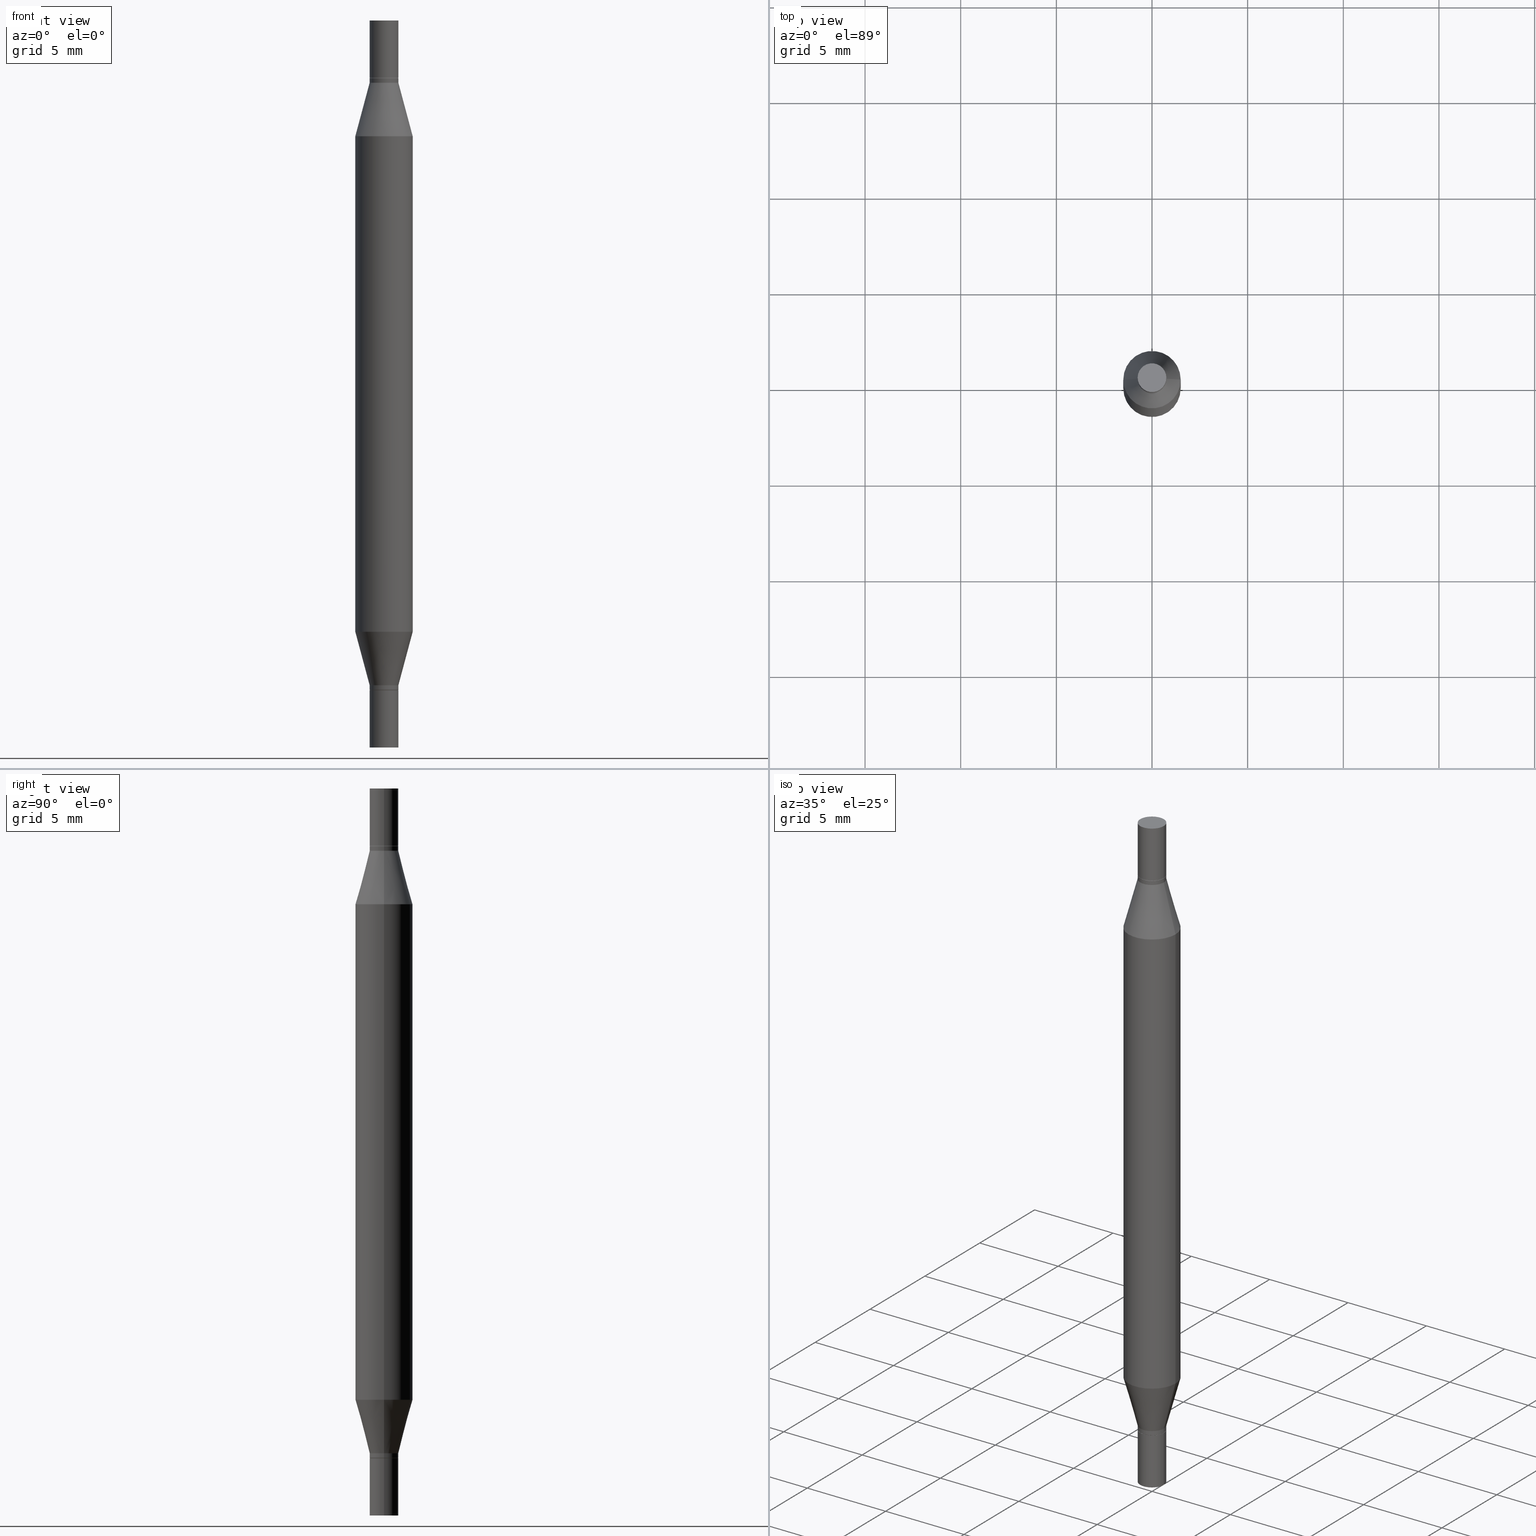
[diagram: canonical four-view strip — front | top / right | iso, engineering-drawing reading convention]
A machine part, canonical four-view strip (front | top / right | iso — engineering-drawing reading convention). The complete STEP part file that produces these views, byte-faithful:
ISO-10303-21;
HEADER;
FILE_DESCRIPTION (( 'STEP AP203' ),
    '1' );
FILE_NAME ('48927.STEP',
    '2024-03-04T16:13:10',
    ( '' ),
    ( '' ),
    'SwSTEP 2.0',
    'SolidWorks 2023',
    '' );
FILE_SCHEMA (( 'CONFIG_CONTROL_DESIGN' ));
ENDSEC;

DATA;
#1 = APPROVAL_PERSON_ORGANIZATION ( #94, #227, #938 ) ;
#2 = CARTESIAN_POINT ( 'NONE',  ( -0.02904999999999999596, -2.120003558898884021E-16, -0.1181000000000000383 ) ) ;
#3 = DIRECTION ( 'NONE',  ( 2.445468806185136597E-29, 3.491805094961124077E-15, 1.000000000000000000 ) ) ;
#4 = FACE_OUTER_BOUND ( 'NONE', #806, .T. ) ;
#5 = VERTEX_POINT ( 'NONE', #975 ) ;
#6 = EDGE_CURVE ( 'NONE', #651, #582, #607, .T. ) ;
#7 = DIRECTION ( 'NONE',  ( 1.000000000000000000, -6.982962677686265133E-15, 0.000000000000000000 ) ) ;
#8 = FACE_OUTER_BOUND ( 'NONE', #726, .T. ) ;
#9 = ORIENTED_EDGE ( 'NONE', *, *, #475, .F. ) ;
#10 = CARTESIAN_POINT ( 'NONE',  ( 3.658665880933582389E-29, 2.421857640538043390E-19, 0.000000000000000000 ) ) ;
#11 = CIRCLE ( 'NONE', #45, 0.02954999999999999988 ) ;
#12 = AXIS2_PLACEMENT_3D ( 'NONE', #619, #472, #19 ) ;
#13 = AXIS2_PLACEMENT_3D ( 'NONE', #67, #893, #448 ) ;
#14 = CARTESIAN_POINT ( 'NONE',  ( -0.02954999999999991661, -2.439811505568221169E-16, -0.1280000000000001137 ) ) ;
#15 = DIRECTION ( 'NONE',  ( 1.000000000000000000, -6.982962677686261977E-15, 0.000000000000000000 ) ) ;
#16 = DESIGN_CONTEXT ( 'detailed design', #798, 'design' ) ;
#17 = ORIENTED_EDGE ( 'NONE', *, *, #434, .T. ) ;
#18 = CARTESIAN_POINT ( 'NONE',  ( 3.658665880933582389E-29, 2.421857640538043390E-19, 0.000000000000000000 ) ) ;
#19 = DIRECTION ( 'NONE',  ( 1.000000000000000000, -6.982962677686265133E-15, 0.000000000000000000 ) ) ;
#20 = EDGE_LOOP ( 'NONE', ( #344, #487, #167, #321 ) ) ;
#21 = DIRECTION ( 'NONE',  ( -2.445468806185136597E-29, 3.491481338843145583E-15, 1.000000000000000000 ) ) ;
#22 = ADVANCED_FACE ( 'NONE', ( #940 ), #829, .T. ) ;
#23 = EDGE_CURVE ( 'NONE', #609, #914, #56, .T. ) ;
#24 = DIRECTION ( 'NONE',  ( 0.000000000000000000, 1.000000000000000000, -4.626330217890369336E-15 ) ) ;
#25 = CONICAL_SURFACE ( 'NONE', #601, 0.02904999999999999596, 0.7853981633974739252 ) ;
#26 = CARTESIAN_POINT ( 'NONE',  ( 3.369856014923117948E-29, -4.811261284925853951E-15, -1.377999999999999892 ) ) ;
#28 = CARTESIAN_POINT ( 'NONE',  ( -0.02954999999999992008, -4.599550165839324668E-15, -1.377499999999999947 ) ) ;
#27 = VECTOR ( 'NONE', #516, 39.37007874015748143 ) ;
#29 = FACE_OUTER_BOUND ( 'NONE', #503, .T. ) ;
#30 = AXIS2_PLACEMENT_3D ( 'NONE', #134, #226, #830 ) ;
#31 = ORGANIZATION ( 'UNSPECIFIED', 'UNSPECIFIED', '' ) ;
#32 = ORIENTED_EDGE ( 'NONE', *, *, #512, .T. ) ;
#33 = CARTESIAN_POINT ( 'NONE',  ( 0.000000000000000000, 0.000000000000000000, 0.000000000000000000 ) ) ;
#34 = CARTESIAN_POINT ( 'NONE',  ( 3.369856014923117948E-29, -4.121399959508538653E-16, -0.1181000000000000383 ) ) ;
#35 = LINE ( 'NONE', #635, #128 ) ;
#36 = DIRECTION ( 'NONE',  ( 1.000000000000000000, -6.982962677686281699E-15, 0.000000000000000000 ) ) ;
#37 = CARTESIAN_POINT ( 'NONE',  ( 3.369856014923117948E-29, -4.811261284925853951E-15, -1.377999999999999892 ) ) ;
#38 = CARTESIAN_POINT ( 'NONE',  ( 0.000000000000000000, -5.223847416807283040E-15, -1.496099999999999985 ) ) ;
#39 = EDGE_CURVE ( 'NONE', #739, #678, #658, .T. ) ;
#40 = CYLINDRICAL_SURFACE ( 'NONE', #568, 0.02954999999999992008 ) ;
#41 = CARTESIAN_POINT ( 'NONE',  ( 3.368633280520025146E-29, -4.138858984983355777E-16, -0.1185999999999999277 ) ) ;
#42 = DIRECTION ( 'NONE',  ( 1.000000000000000000, -6.982962677686265922E-15, 2.260776888683160832E-33 ) ) ;
#43 = VECTOR ( 'NONE', #184, 39.37007874015748143 ) ;
#44 = EDGE_LOOP ( 'NONE', ( #491, #315, #960, #759 ) ) ;
#45 = AXIS2_PLACEMENT_3D ( 'NONE', #10, #923, #698 ) ;
#46 = ADVANCED_FACE ( 'NONE', ( #146 ), #228, .T. ) ;
#47 = AXIS2_PLACEMENT_3D ( 'NONE', #460, #817, #906 ) ;
#48 = DIRECTION ( 'NONE',  ( -2.445468806185136597E-29, 3.491481338843145583E-15, 1.000000000000000000 ) ) ;
#49 = CARTESIAN_POINT ( 'NONE',  ( -0.02954999999999999988, -4.807467879567433237E-15, -1.377999999999999892 ) ) ;
#50 = PLANE ( 'NONE',  #113 ) ;
#51 = ORIENTED_EDGE ( 'NONE', *, *, #340, .F. ) ;
#52 = EDGE_LOOP ( 'NONE', ( #749, #261, #788, #473 ) ) ;
#53 = APPROVAL_DATE_TIME ( #883, #54 ) ;
#54 = APPROVAL ( #808, 'UNSPECIFIED' ) ;
#55 = CARTESIAN_POINT ( 'NONE',  ( 0.000000000000000000, -5.223847416807283040E-15, -1.496099999999999985 ) ) ;
#56 = CIRCLE ( 'NONE', #438, 0.02954999999999999988 ) ;
#57 = AXIS2_PLACEMENT_3D ( 'NONE', #563, #91, #24 ) ;
#58 = VECTOR ( 'NONE', #296, 39.37007874015747433 ) ;
#59 = DIRECTION ( 'NONE',  ( 2.445468806185136597E-29, 3.491805094961124077E-15, 1.000000000000000000 ) ) ;
#60 = CC_DESIGN_APPROVAL ( #227, ( #949 ) ) ;
#61 = LINE ( 'NONE', #362, #930 ) ;
#62 = VERTEX_POINT ( 'NONE', #638 ) ;
#63 = CARTESIAN_POINT ( 'NONE',  ( 0.000000000000000000, -5.223847416807283040E-15, -1.496099999999999985 ) ) ;
#64 = DIRECTION ( 'NONE',  ( -2.445468806185136877E-29, 3.491481338843145188E-15, 1.000000000000000000 ) ) ;
#65 = ADVANCED_FACE ( 'NONE', ( #943 ), #714, .T. ) ;
#66 = EDGE_CURVE ( 'NONE', #542, #459, #262, .T. ) ;
#67 = CARTESIAN_POINT ( 'NONE',  ( 3.369856014923117948E-29, -4.121399959508538653E-16, -0.1181000000000000383 ) ) ;
#68 = PRODUCT_RELATED_PRODUCT_CATEGORY ( 'detail', '', ( #639 ) ) ;
#69 = EDGE_LOOP ( 'NONE', ( #665, #248, #207, #581 ) ) ;
#70 = CLOSED_SHELL ( 'NONE', ( #153, #570, #441, #695 ) ) ;
#71 = DIRECTION ( 'NONE',  ( 1.000000000000000000, -6.982962677686280910E-15, 0.000000000000000000 ) ) ;
#72 = CC_DESIGN_APPROVAL ( #54, ( #470 ) ) ;
#73 = DIRECTION ( 'NONE',  ( 1.000000000000000000, -6.982962677686266711E-15, 2.260776888683160832E-33 ) ) ;
#74 = ORIENTED_EDGE ( 'NONE', *, *, #513, .T. ) ;
#75 = LINE ( 'NONE', #896, #604 ) ;
#76 = ORIENTED_EDGE ( 'NONE', *, *, #793, .T. ) ;
#77 = CARTESIAN_POINT ( 'NONE',  ( 0.05905000000000000526, -5.636191362924657961E-15, -1.496099999999999985 ) ) ;
#78 = ORIENTED_EDGE ( 'NONE', *, *, #66, .F. ) ;
#79 = VERTEX_POINT ( 'NONE', #783 ) ;
#80 = AXIS2_PLACEMENT_3D ( 'NONE', #865, #939, #192 ) ;
#81 = COORDINATED_UNIVERSAL_TIME_OFFSET ( 5, 0, .BEHIND. ) ;
#82 = VECTOR ( 'NONE', #810, 39.37007874015748143 ) ;
#83 = CARTESIAN_POINT ( 'NONE',  ( 3.369856014923117948E-29, -4.121399959508538653E-16, -0.1181000000000000383 ) ) ;
#84 = ORIENTED_EDGE ( 'NONE', *, *, #320, .F. ) ;
#85 = LINE ( 'NONE', #14, #164 ) ;
#86 = DIRECTION ( 'NONE',  ( 1.000000000000000000, -6.982962677686281699E-15, 0.000000000000000000 ) ) ;
#87 = ADVANCED_FACE ( 'NONE', ( #105 ), #710, .T. ) ;
#88 = EDGE_CURVE ( 'NONE', #459, #390, #514, .T. ) ;
#89 = CARTESIAN_POINT ( 'NONE',  ( -0.02954999999999999988, -5.021119700973134755E-15, -1.496099999999999985 ) ) ;
#90 = ORIENTED_EDGE ( 'NONE', *, *, #116, .T. ) ;
#91 = DIRECTION ( 'NONE',  ( -0.000000000000000000, -3.491643216902134830E-15, -1.000000000000000000 ) ) ;
#92 = VERTEX_POINT ( 'NONE', #507 ) ;
#93 = DIRECTION ( 'NONE',  ( 1.000000000000000000, -6.982962677686278543E-15, 0.000000000000000000 ) ) ;
#94 = PERSON_AND_ORGANIZATION ( #483, #31 ) ;
#95 = EDGE_LOOP ( 'NONE', ( #721, #74, #276, #606 ) ) ;
#96 = CIRCLE ( 'NONE', #535, 0.02954999999999992008 ) ;
#97 = FACE_OUTER_BOUND ( 'NONE', #910, .T. ) ;
#98 = CARTESIAN_POINT ( 'NONE',  ( 3.345645873741884627E-29, -4.776695619671307391E-15, -1.368099999999999872 ) ) ;
#99 = AXIS2_PLACEMENT_3D ( 'NONE', #83, #569, #42 ) ;
#100 = EDGE_CURVE ( 'NONE', #970, #459, #111, .T. ) ;
#101 =( LENGTH_UNIT ( ) NAMED_UNIT ( * ) SI_UNIT ( $, .METRE. ) );
#102 = DIRECTION ( 'NONE',  ( -2.445468806185136597E-29, -3.491805094961124077E-15, -1.000000000000000000 ) ) ;
#103 = CARTESIAN_POINT ( 'NONE',  ( 3.369856014923117948E-29, -4.121399959508538653E-16, -0.1181000000000000383 ) ) ;
#104 = VERTEX_POINT ( 'NONE', #821 ) ;
#105 = FACE_OUTER_BOUND ( 'NONE', #168, .T. ) ;
#106 = DIRECTION ( 'NONE',  ( 1.000000000000000000, -6.982962677686265922E-15, 4.876176775795935793E-29 ) ) ;
#107 = FACE_OUTER_BOUND ( 'NONE', #52, .T. ) ;
#108 = CYLINDRICAL_SURFACE ( 'NONE', #317, 0.02954999999999992008 ) ;
#109 = ORIENTED_EDGE ( 'NONE', *, *, #235, .T. ) ;
#110 = DIRECTION ( 'NONE',  ( 1.000000000000000000, -6.982962677686265133E-15, 0.000000000000000000 ) ) ;
#111 = CIRCLE ( 'NONE', #400, 0.02954999999999991661 ) ;
#112 = ADVANCED_FACE ( 'NONE', ( #133 ), #755, .T. ) ;
#113 = AXIS2_PLACEMENT_3D ( 'NONE', #199, #193, #861 ) ;
#114 = FACE_OUTER_BOUND ( 'NONE', #20, .T. ) ;
#115 = ORIENTED_EDGE ( 'NONE', *, *, #583, .F. ) ;
#116 = EDGE_CURVE ( 'NONE', #740, #739, #447, .T. ) ;
#117 = CC_DESIGN_PERSON_AND_ORGANIZATION_ASSIGNMENT ( #965, #408, ( #470 ) ) ;
#118 = ORIENTED_EDGE ( 'NONE', *, *, #384, .F. ) ;
#119 = DIRECTION ( 'NONE',  ( -2.445468806185136597E-29, 3.491481338843145583E-15, 1.000000000000000000 ) ) ;
#120 = DIRECTION ( 'NONE',  ( 1.000000000000000000, -6.982962677686278543E-15, 0.000000000000000000 ) ) ;
#121 = CARTESIAN_POINT ( 'NONE',  ( 3.076410765668156654E-29, -8.311408901143919011E-16, -0.2380954988232820146 ) ) ;
#122 = VERTEX_POINT ( 'NONE', #2 ) ;
#123 = CARTESIAN_POINT ( 'NONE',  ( 3.345645873741884627E-29, -4.467088663909703532E-16, -0.1280000000000001137 ) ) ;
#124 = CALENDAR_DATE ( 2024, 4, 3 ) ;
#125 = CARTESIAN_POINT ( 'NONE',  ( 3.658665880933582389E-29, 2.421857640538043390E-19, 0.000000000000000000 ) ) ;
#126 = CARTESIAN_POINT ( 'NONE',  ( 0.000000000000000000, -5.223847416807283040E-15, -1.496099999999999985 ) ) ;
#127 = VERTEX_POINT ( 'NONE', #304 ) ;
#128 = VECTOR ( 'NONE', #900, 39.37007874015748143 ) ;
#129 = VECTOR ( 'NONE', #626, 39.37007874015748143 ) ;
#130 = AXIS2_PLACEMENT_3D ( 'NONE', #489, #494, #275 ) ;
#131 = AXIS2_PLACEMENT_3D ( 'NONE', #515, #310, #822 ) ;
#132 = ADVANCED_FACE ( 'NONE', ( #816 ), #885, .T. ) ;
#133 = FACE_OUTER_BOUND ( 'NONE', #95, .T. ) ;
#134 = CARTESIAN_POINT ( 'NONE',  ( 3.368633280520025146E-29, -4.138858984983355777E-16, -0.1185999999999999277 ) ) ;
#135 = VERTEX_POINT ( 'NONE', #628 ) ;
#136 = VERTEX_POINT ( 'NONE', #253 ) ;
#137 = CYLINDRICAL_SURFACE ( 'NONE', #240, 0.02954999999999992008 ) ;
#138 = CARTESIAN_POINT ( 'NONE',  ( 3.345645873741884627E-29, -4.467088663909703532E-16, -0.1280000000000001137 ) ) ;
#139 = DIRECTION ( 'NONE',  ( 2.445468806185136597E-29, 3.491805094961124077E-15, 1.000000000000000000 ) ) ;
#140 = EDGE_CURVE ( 'NONE', #154, #281, #586, .T. ) ;
#141 = FACE_OUTER_BOUND ( 'NONE', #733, .T. ) ;
#142 = ORIENTED_EDGE ( 'NONE', *, *, #976, .T. ) ;
#143 = EDGE_LOOP ( 'NONE', ( #174, #824, #237, #921 ) ) ;
#144 = CARTESIAN_POINT ( 'NONE',  ( 3.076410765668156654E-29, -8.311408901143919011E-16, -0.2380954988232820146 ) ) ;
#145 = DIRECTION ( 'NONE',  ( -2.445468806185136597E-29, 3.491481338843145583E-15, 1.000000000000000000 ) ) ;
#146 = FACE_OUTER_BOUND ( 'NONE', #555, .T. ) ;
#147 = AXIS2_PLACEMENT_3D ( 'NONE', #258, #785, #86 ) ;
#148 = AXIS2_PLACEMENT_3D ( 'NONE', #951, #273, #869 ) ;
#149 = AXIS2_PLACEMENT_3D ( 'NONE', #103, #409, #325 ) ;
#150 = LOCAL_TIME ( 11, 13, 10.00000000000000000, #341 ) ;
#151 = LINE ( 'NONE', #596, #58 ) ;
#152 = ADVANCED_FACE ( 'NONE', ( #97 ), #768, .F. ) ;
#153 = ADVANCED_FACE ( 'NONE', ( #852 ), #926, .T. ) ;
#154 = VERTEX_POINT ( 'NONE', #28 ) ;
#155 = DIRECTION ( 'NONE',  ( 1.000000000000000000, -6.982962677686265133E-15, 0.000000000000000000 ) ) ;
#156 = DATE_AND_TIME ( #546, #485 ) ;
#157 = FACE_OUTER_BOUND ( 'NONE', #764, .T. ) ;
#158 = VECTOR ( 'NONE', #176, 39.37007874015748143 ) ;
#159 = AXIS2_PLACEMENT_3D ( 'NONE', #518, #693, #36 ) ;
#160 = EDGE_CURVE ( 'NONE', #92, #505, #334, .T. ) ;
#161 = DIRECTION ( 'NONE',  ( -1.000000000000000000, 6.982962677686265922E-15, -4.876176775795935793E-29 ) ) ;
#162 = VECTOR ( 'NONE', #641, 39.37007874015748143 ) ;
#163 = EDGE_CURVE ( 'NONE', #331, #959, #35, .T. ) ;
#164 = VECTOR ( 'NONE', #180, 39.37007874015747433 ) ;
#165 = DIRECTION ( 'NONE',  ( -2.445468806185136597E-29, -3.491805094961124077E-15, -1.000000000000000000 ) ) ;
#166 = ORIENTED_EDGE ( 'NONE', *, *, #235, .F. ) ;
#167 = ORIENTED_EDGE ( 'NONE', *, *, #857, .T. ) ;
#168 = EDGE_LOOP ( 'NONE', ( #801, #499, #612, #465 ) ) ;
#169 = LINE ( 'NONE', #250, #27 ) ;
#170 = DIRECTION ( 'NONE',  ( 2.438088387897959208E-29, 3.491805094961123683E-15, 1.000000000000000000 ) ) ;
#171 = DIRECTION ( 'NONE',  ( -2.445468806185136597E-29, -3.491805094961124077E-15, -1.000000000000000000 ) ) ;
#172 = PRODUCT_DEFINITION ( 'UNKNOWN', '', #949, #16 ) ;
#173 = EDGE_LOOP ( 'NONE', ( #308, #32, #269, #490 ) ) ;
#174 = ORIENTED_EDGE ( 'NONE', *, *, #88, .F. ) ;
#175 =( NAMED_UNIT ( * ) SI_UNIT ( $, .STERADIAN. ) SOLID_ANGLE_UNIT ( ) );
#176 = DIRECTION ( 'NONE',  ( 0.7071067811865656694, -7.406779323393341342E-15, -0.7071067811865294761 ) ) ;
#177 = CARTESIAN_POINT ( 'NONE',  ( 3.345645873741884627E-29, -4.467088663909703532E-16, -0.1280000000000001137 ) ) ;
#178 = ADVANCED_FACE ( 'NONE', ( #232 ), #820, .F. ) ;
#179 = ORIENTED_EDGE ( 'NONE', *, *, #263, .T. ) ;
#180 = DIRECTION ( 'NONE',  ( -0.2588190451025213501, -1.597197180879714326E-15, -0.9659258262890682012 ) ) ;
#181 = CONICAL_SURFACE ( 'NONE', #314, 0.02954999999999991661, 0.2617993877991500740 ) ;
#182 = CIRCLE ( 'NONE', #925, 0.05904999999999999832 ) ;
#183 = LINE ( 'NONE', #244, #300 ) ;
#184 = DIRECTION ( 'NONE',  ( -2.445468806185136877E-29, -3.491805094961123683E-15, -1.000000000000000000 ) ) ;
#185 = AXIS2_PLACEMENT_3D ( 'NONE', #443, #519, #155 ) ;
#186 = AXIS2_PLACEMENT_3D ( 'NONE', #478, #257, #161 ) ;
#187 = EDGE_CURVE ( 'NONE', #505, #542, #96, .T. ) ;
#188 = ORIENTED_EDGE ( 'NONE', *, *, #863, .T. ) ;
#189 = CARTESIAN_POINT ( 'NONE',  ( 3.369856014923117948E-29, -4.121399959508538653E-16, -0.1181000000000000383 ) ) ;
#190 = DIRECTION ( 'NONE',  ( 2.445468806185136597E-29, 3.491805094961124077E-15, 1.000000000000000000 ) ) ;
#191 = LINE ( 'NONE', #716, #82 ) ;
#192 = DIRECTION ( 'NONE',  ( 1.000000000000000000, -6.982962677686266711E-15, 0.000000000000000000 ) ) ;
#193 = DIRECTION ( 'NONE',  ( -2.438088387897960049E-29, 3.491481338843145188E-15, 1.000000000000000000 ) ) ;
#194 = ORIENTED_EDGE ( 'NONE', *, *, #363, .T. ) ;
#195 = CARTESIAN_POINT ( 'NONE',  ( 3.076410765668156654E-29, -4.392299240039190746E-15, -1.258004501176717804 ) ) ;
#196 = ORIENTED_EDGE ( 'NONE', *, *, #357, .F. ) ;
#197 = CARTESIAN_POINT ( 'NONE',  ( 3.076410765668156654E-29, -4.392299240039190746E-15, -1.258004501176717804 ) ) ;
#198 = ADVANCED_FACE ( 'NONE', ( #671 ), #25, .T. ) ;
#199 = CARTESIAN_POINT ( 'NONE',  ( 3.369856014923117948E-29, -4.811261284925853951E-15, -1.377999999999999892 ) ) ;
#200 = AXIS2_PLACEMENT_3D ( 'NONE', #573, #190, #413 ) ;
#201 = ORIENTED_EDGE ( 'NONE', *, *, #948, .F. ) ;
#202 = CC_DESIGN_PERSON_AND_ORGANIZATION_ASSIGNMENT ( #337, #839, ( #172 ) ) ;
#203 = CIRCLE ( 'NONE', #402, 0.02954999999999999988 ) ;
#204 = AXIS2_PLACEMENT_3D ( 'NONE', #371, #145, #464 ) ;
#205 = FACE_OUTER_BOUND ( 'NONE', #680, .T. ) ;
#206 = ORIENTED_EDGE ( 'NONE', *, *, #857, .F. ) ;
#207 = ORIENTED_EDGE ( 'NONE', *, *, #729, .F. ) ;
#208 = DIRECTION ( 'NONE',  ( 2.445468806185136597E-29, 3.491805094961124077E-15, 1.000000000000000000 ) ) ;
#209 = APPROVAL_ROLE ( '' ) ;
#210 = CARTESIAN_POINT ( 'NONE',  ( 0.02954999999999991661, -4.983042166796936213E-15, -1.368099999999999872 ) ) ;
#211 = ORIENTED_EDGE ( 'NONE', *, *, #557, .F. ) ;
#212 = ADVANCED_FACE ( 'NONE', ( #259 ), #924, .T. ) ;
#213 = VERTEX_POINT ( 'NONE', #724 ) ;
#214 = ORIENTED_EDGE ( 'NONE', *, *, #729, .T. ) ;
#215 = DIRECTION ( 'NONE',  ( 1.000000000000000000, -6.982962677686280910E-15, 0.000000000000000000 ) ) ;
#216 = CARTESIAN_POINT ( 'NONE',  ( -0.02904999999999999596, -2.128425291155909173E-16, -0.1181000000000000383 ) ) ;
#217 = CIRCLE ( 'NONE', #345, 0.02954999999999992008 ) ;
#218 = CIRCLE ( 'NONE', #622, 0.05904999999999999832 ) ;
#219 = ORIENTED_EDGE ( 'NONE', *, *, #140, .T. ) ;
#220 = DIRECTION ( 'NONE',  ( 1.000000000000000000, -6.982962677686272233E-15, 0.000000000000000000 ) ) ;
#221 = CYLINDRICAL_SURFACE ( 'NONE', #131, 0.05905000000000000526 ) ;
#222 = ORIENTED_EDGE ( 'NONE', *, *, #756, .F. ) ;
#223 = DIRECTION ( 'NONE',  ( -2.445468806185136877E-29, -3.491805094961123683E-15, -1.000000000000000000 ) ) ;
#224 = DIRECTION ( 'NONE',  ( 1.000000000000000000, -6.982962677686280910E-15, 0.000000000000000000 ) ) ;
#225 = DIRECTION ( 'NONE',  ( 1.000000000000000000, -6.982962677686261977E-15, 0.000000000000000000 ) ) ;
#226 = DIRECTION ( 'NONE',  ( 2.445468806185136597E-29, 3.491805094961124077E-15, 1.000000000000000000 ) ) ;
#227 = APPROVAL ( #836, 'UNSPECIFIED' ) ;
#228 = CYLINDRICAL_SURFACE ( 'NONE', #858, 0.02954999999999999988 ) ;
#229 = AXIS2_PLACEMENT_3D ( 'NONE', #566, #59, #967 ) ;
#230 = AXIS2_PLACEMENT_3D ( 'NONE', #498, #648, #268 ) ;
#231 = DIRECTION ( 'NONE',  ( -2.445468806185136597E-29, -3.491805094961124077E-15, -1.000000000000000000 ) ) ;
#232 = FACE_OUTER_BOUND ( 'NONE', #449, .T. ) ;
#233 = DIRECTION ( 'NONE',  ( -0.000000000000000000, -3.491643216902134830E-15, -1.000000000000000000 ) ) ;
#234 = APPROVAL_ROLE ( '' ) ;
#235 = EDGE_CURVE ( 'NONE', #534, #136, #777, .T. ) ;
#236 = EDGE_CURVE ( 'NONE', #739, #792, #968, .T. ) ;
#237 = ORIENTED_EDGE ( 'NONE', *, *, #805, .T. ) ;
#238 = PLANE ( 'NONE',  #99 ) ;
#239 = AXIS2_PLACEMENT_3D ( 'NONE', #63, #737, #220 ) ;
#240 = AXIS2_PLACEMENT_3D ( 'NONE', #272, #560, #919 ) ;
#241 = ADVANCED_FACE ( 'NONE', ( #803 ), #181, .T. ) ;
#242 = CARTESIAN_POINT ( 'NONE',  ( 0.02904999999999999596, -5.014116350712640554E-15, -1.377999999999999892 ) ) ;
#243 = VECTOR ( 'NONE', #731, 39.37007874015748143 ) ;
#244 = CARTESIAN_POINT ( 'NONE',  ( -0.02904999999999999596, -4.604848620187545492E-15, -1.377999999999999892 ) ) ;
#245 = ORIENTED_EDGE ( 'NONE', *, *, #450, .F. ) ;
#246 = DIRECTION ( 'NONE',  ( -2.445468806185136597E-29, -3.491805094961124077E-15, -1.000000000000000000 ) ) ;
#247 = MANIFOLD_SOLID_BREP ( 'Combine1', #961 ) ;
#248 = ORIENTED_EDGE ( 'NONE', *, *, #450, .T. ) ;
#249 = LINE ( 'NONE', #904, #129 ) ;
#250 = CARTESIAN_POINT ( 'NONE',  ( -0.02954999999999999988, 2.099653784171096041E-16, -1.453545319170324550E-30 ) ) ;
#251 = CARTESIAN_POINT ( 'NONE',  ( 0.02954999999999999988, -2.063465471256291914E-16, 1.440910237247699070E-30 ) ) ;
#252 = LENGTH_MEASURE_WITH_UNIT ( LENGTH_MEASURE( 0.02539999999999999897 ), #101 );
#253 = CARTESIAN_POINT ( 'NONE',  ( 0.02954999999999999988, -6.184865430764830320E-16, -0.1181000000000000383 ) ) ;
#254 = CARTESIAN_POINT ( 'NONE',  ( 0.000000000000000000, -5.223847416807283040E-15, -1.496099999999999985 ) ) ;
#255 = ORIENTED_EDGE ( 'NONE', *, *, #100, .T. ) ;
#256 = CYLINDRICAL_SURFACE ( 'NONE', #907, 0.02954999999999999988 ) ;
#257 = DIRECTION ( 'NONE',  ( 2.438088387897960049E-29, -3.491481338843145188E-15, -1.000000000000000000 ) ) ;
#258 = CARTESIAN_POINT ( 'NONE',  ( 3.345645873741884627E-29, -4.776695619671307391E-15, -1.368099999999999872 ) ) ;
#259 = FACE_OUTER_BOUND ( 'NONE', #143, .T. ) ;
#260 = FACE_OUTER_BOUND ( 'NONE', #685, .T. ) ;
#261 = ORIENTED_EDGE ( 'NONE', *, *, #895, .F. ) ;
#262 = LINE ( 'NONE', #270, #43 ) ;
#263 = EDGE_CURVE ( 'NONE', #289, #690, #217, .T. ) ;
#264 = ORIENTED_EDGE ( 'NONE', *, *, #807, .F. ) ;
#265 = AXIS2_PLACEMENT_3D ( 'NONE', #405, #170, #700 ) ;
#266 = CIRCLE ( 'NONE', #589, 0.02904999999999999596 ) ;
#267 = CIRCLE ( 'NONE', #422, 0.05905000000000000526 ) ;
#268 = DIRECTION ( 'NONE',  ( 0.000000000000000000, 1.000000000000000000, -3.491643216902134435E-15 ) ) ;
#269 = ORIENTED_EDGE ( 'NONE', *, *, #790, .T. ) ;
#270 = CARTESIAN_POINT ( 'NONE',  ( -0.02954999999999992008, -5.021119700973135544E-15, -1.496099999999999985 ) ) ;
#271 = CYLINDRICAL_SURFACE ( 'NONE', #468, 0.05905000000000000526 ) ;
#272 = CARTESIAN_POINT ( 'NONE',  ( 0.000000000000000000, 0.000000000000000000, 0.000000000000000000 ) ) ;
#273 = DIRECTION ( 'NONE',  ( 2.445468806185136597E-29, 3.491805094961124077E-15, 1.000000000000000000 ) ) ;
#274 = EDGE_CURVE ( 'NONE', #331, #530, #887, .T. ) ;
#275 = DIRECTION ( 'NONE',  ( 1.000000000000000000, -6.982962677686266711E-15, 0.000000000000000000 ) ) ;
#276 = ORIENTED_EDGE ( 'NONE', *, *, #320, .T. ) ;
#277 = ORIENTED_EDGE ( 'NONE', *, *, #23, .F. ) ;
#278 = FACE_OUTER_BOUND ( 'NONE', #668, .T. ) ;
#279 = FACE_OUTER_BOUND ( 'NONE', #173, .T. ) ;
#280 = CLOSED_SHELL ( 'NONE', ( #302, #178, #46, #978 ) ) ;
#281 = VERTEX_POINT ( 'NONE', #435 ) ;
#282 = CIRCLE ( 'NONE', #646, 0.05904999999999999832 ) ;
#283 = ORIENTED_EDGE ( 'NONE', *, *, #373, .F. ) ;
#284 = CIRCLE ( 'NONE', #796, 0.02954999999999991661 ) ;
#285 = CARTESIAN_POINT ( 'NONE',  ( 3.369856014923117948E-29, -4.811261284925853951E-15, -1.377999999999999892 ) ) ;
#286 = ORIENTED_EDGE ( 'NONE', *, *, #827, .T. ) ;
#287 = EDGE_CURVE ( 'NONE', #542, #505, #743, .T. ) ;
#288 = CALENDAR_DATE ( 2024, 4, 3 ) ;
#289 = VERTEX_POINT ( 'NONE', #290 ) ;
#290 = CARTESIAN_POINT ( 'NONE',  ( 0.02954999999999992008, -6.202324456239627230E-16, -0.1185999999999999277 ) ) ;
#291 = CARTESIAN_POINT ( 'NONE',  ( 0.000000000000000000, -5.223847416807283040E-15, -1.496099999999999985 ) ) ;
#292 = LINE ( 'NONE', #508, #303 ) ;
#293 = EDGE_LOOP ( 'NONE', ( #727, #789 ) ) ;
#294 = ORIENTED_EDGE ( 'NONE', *, *, #583, .T. ) ;
#295 = CARTESIAN_POINT ( 'NONE',  ( 3.369856014923117948E-29, -4.811261284925853951E-15, -1.377999999999999892 ) ) ;
#296 = DIRECTION ( 'NONE',  ( 0.2588190451025213501, -5.180148453816008779E-15, -0.9659258262890682012 ) ) ;
#297 = ORIENTED_EDGE ( 'NONE', *, *, #763, .F. ) ;
#298 = ORIENTED_EDGE ( 'NONE', *, *, #692, .F. ) ;
#299 = CONICAL_SURFACE ( 'NONE', #388, 0.02904999999999999596, 0.7853981633974739252 ) ;
#300 = VECTOR ( 'NONE', #529, 39.37007874015748143 ) ;
#301 = ORIENTED_EDGE ( 'NONE', *, *, #373, .T. ) ;
#302 = ADVANCED_FACE ( 'NONE', ( #814 ), #957, .T. ) ;
#303 = VECTOR ( 'NONE', #329, 39.37007874015748143 ) ;
#304 = CARTESIAN_POINT ( 'NONE',  ( 0.02954999999999999988, -5.429951778168858482E-15, -1.496099999999999985 ) ) ;
#305 = CARTESIAN_POINT ( 'NONE',  ( -0.05905000000000000526, -4.818735010038875060E-15, -1.496099999999999985 ) ) ;
#306 = ORIENTED_EDGE ( 'NONE', *, *, #912, .T. ) ;
#307 = EDGE_CURVE ( 'NONE', #772, #792, #603, .T. ) ;
#308 = ORIENTED_EDGE ( 'NONE', *, *, #863, .F. ) ;
#309 = EDGE_CURVE ( 'NONE', #609, #136, #862, .T. ) ;
#310 = DIRECTION ( 'NONE',  ( -2.445468806185136597E-29, -3.491805094961124077E-15, -1.000000000000000000 ) ) ;
#311 = DIRECTION ( 'NONE',  ( -2.445468806185136597E-29, -3.491805094961124077E-15, -1.000000000000000000 ) ) ;
#312 = EDGE_LOOP ( 'NONE', ( #633, #352, #894, #955 ) ) ;
#313 = ORIENTED_EDGE ( 'NONE', *, *, #488, .T. ) ;
#314 = AXIS2_PLACEMENT_3D ( 'NONE', #663, #119, #358 ) ;
#315 = ORIENTED_EDGE ( 'NONE', *, *, #274, .F. ) ;
#316 = CONICAL_SURFACE ( 'NONE', #80, 0.02904999999999999596, 0.7853981633974739252 ) ;
#317 = AXIS2_PLACEMENT_3D ( 'NONE', #504, #649, #725 ) ;
#318 = APPROVAL_STATUS ( 'not_yet_approved' ) ;
#319 = CARTESIAN_POINT ( 'NONE',  ( -0.02954999999999991661, -4.566730241254198034E-15, -1.368099999999999872 ) ) ;
#320 = EDGE_CURVE ( 'NONE', #966, #281, #249, .T. ) ;
#321 = ORIENTED_EDGE ( 'NONE', *, *, #453, .T. ) ;
#322 = ORIENTED_EDGE ( 'NONE', *, *, #488, .F. ) ;
#323 =( NAMED_UNIT ( * ) PLANE_ANGLE_UNIT ( ) SI_UNIT ( $, .RADIAN. ) );
#324 = CARTESIAN_POINT ( 'NONE',  ( 3.369856014923117948E-29, -4.121399959508538653E-16, -0.1181000000000000383 ) ) ;
#325 = DIRECTION ( 'NONE',  ( 1.000000000000000000, -6.982962677686266711E-15, 0.000000000000000000 ) ) ;
#326 = EDGE_CURVE ( 'NONE', #136, #534, #979, .T. ) ;
#327 = CARTESIAN_POINT ( 'NONE',  ( 0.02954999999999999988, -5.430193963932912651E-15, -1.496099999999999985 ) ) ;
#328 = DIRECTION ( 'NONE',  ( -2.445468806185136597E-29, -3.491805094961124077E-15, -1.000000000000000000 ) ) ;
#329 = DIRECTION ( 'NONE',  ( -0.7071067811865656694, 2.382025595312421833E-15, -0.7071067811865294761 ) ) ;
#330 = CARTESIAN_POINT ( 'NONE',  ( 0.000000000000000000, -5.223847416807283040E-15, -1.496099999999999985 ) ) ;
#331 = VERTEX_POINT ( 'NONE', #616 ) ;
#332 = APPLICATION_PROTOCOL_DEFINITION ( 'international standard', 'config_control_design', 1994, #798 ) ;
#333 = CIRCLE ( 'NONE', #876, 0.02904999999999999596 ) ;
#334 = LINE ( 'NONE', #707, #158 ) ;
#335 = CYLINDRICAL_SURFACE ( 'NONE', #623, 0.05905000000000000526 ) ;
#336 = CARTESIAN_POINT ( 'NONE',  ( 0.02904999999999999596, -6.149950617376399263E-16, -0.1181000000000000383 ) ) ;
#337 = PERSON_AND_ORGANIZATION ( #483, #31 ) ;
#338 = CC_DESIGN_PERSON_AND_ORGANIZATION_ASSIGNMENT ( #610, #531, ( #949 ) ) ;
#339 = DIRECTION ( 'NONE',  ( -2.445468806185136877E-29, -3.491805094961123683E-15, -1.000000000000000000 ) ) ;
#340 = EDGE_CURVE ( 'NONE', #914, #609, #11, .T. ) ;
#341 = COORDINATED_UNIVERSAL_TIME_OFFSET ( 5, 0, .BEHIND. ) ;
#342 = DIRECTION ( 'NONE',  ( 1.000000000000000000, -6.982962677686266711E-15, 0.000000000000000000 ) ) ;
#343 = CARTESIAN_POINT ( 'NONE',  ( 0.02954999999999992008, -5.430193963932912651E-15, -1.496099999999999985 ) ) ;
#344 = ORIENTED_EDGE ( 'NONE', *, *, #793, .F. ) ;
#345 = AXIS2_PLACEMENT_3D ( 'NONE', #809, #577, #881 ) ;
#346 = AXIS2_PLACEMENT_3D ( 'NONE', #34, #683, #462 ) ;
#347 = AXIS2_PLACEMENT_3D ( 'NONE', #804, #950, #353 ) ;
#348 = CYLINDRICAL_SURFACE ( 'NONE', #347, 0.02954999999999992008 ) ;
#349 = AXIS2_PLACEMENT_3D ( 'NONE', #33, #766, #617 ) ;
#350 = EDGE_CURVE ( 'NONE', #127, #62, #624, .T. ) ;
#351 = ADVANCED_FACE ( 'NONE', ( #774 ), #316, .T. ) ;
#352 = ORIENTED_EDGE ( 'NONE', *, *, #6, .T. ) ;
#353 = DIRECTION ( 'NONE',  ( 1.000000000000000000, -6.982962677686280910E-15, 0.000000000000000000 ) ) ;
#354 = CARTESIAN_POINT ( 'NONE',  ( -0.05904999999999999832, -4.260284833459836245E-16, -0.2380954988232820146 ) ) ;
#355 = ADVANCED_FACE ( 'NONE', ( #492 ), #137, .T. ) ;
#356 = CARTESIAN_POINT ( 'NONE',  ( 2.063465471256628659E-16, 0.02954999999999958701, -0.1181000000000003020 ) ) ;
#357 = EDGE_CURVE ( 'NONE', #966, #5, #266, .T. ) ;
#358 = DIRECTION ( 'NONE',  ( 1.000000000000000000, -6.982962677686281699E-15, 0.000000000000000000 ) ) ;
#359 = DIRECTION ( 'NONE',  ( 2.445468806185136597E-29, 3.491805094961124077E-15, 1.000000000000000000 ) ) ;
#360 = AXIS2_PLACEMENT_3D ( 'NONE', #873, #697, #784 ) ;
#361 = CIRCLE ( 'NONE', #832, 0.02954999999999999988 ) ;
#362 = CARTESIAN_POINT ( 'NONE',  ( 0.02954999999999992008, -5.430193963932912651E-15, -1.496099999999999985 ) ) ;
#363 = EDGE_CURVE ( 'NONE', #79, #289, #931, .T. ) ;
#364 = SECURITY_CLASSIFICATION_LEVEL ( 'unclassified' ) ;
#365 = DIRECTION ( 'NONE',  ( -0.2588190451025213501, -1.597197180879714326E-15, -0.9659258262890682012 ) ) ;
#366 = CARTESIAN_POINT ( 'NONE',  ( 3.658665880933582389E-29, 2.421857640538043390E-19, 0.000000000000000000 ) ) ;
#367 = DIRECTION ( 'NONE',  ( 1.000000000000000000, -6.982962677686264344E-15, 0.000000000000000000 ) ) ;
#368 = EDGE_CURVE ( 'NONE', #959, #104, #372, .T. ) ;
#369 = EDGE_LOOP ( 'NONE', ( #211, #752, #682, #576 ) ) ;
#370 = CARTESIAN_POINT ( 'NONE',  ( 0.02954999999999991661, -6.530554135165988789E-16, -0.1280000000000001137 ) ) ;
#371 = CARTESIAN_POINT ( 'NONE',  ( 3.369856014923117948E-29, -4.811261284925853951E-15, -1.377999999999999892 ) ) ;
#372 = CIRCLE ( 'NONE', #794, 0.02954999999999999988 ) ;
#373 = EDGE_CURVE ( 'NONE', #390, #135, #282, .T. ) ;
#374 = ORIENTED_EDGE ( 'NONE', *, *, #368, .F. ) ;
#375 = CONICAL_SURFACE ( 'NONE', #204, 0.02904999999999999596, 0.7853981633974739252 ) ;
#376 = EDGE_CURVE ( 'NONE', #678, #739, #778, .T. ) ;
#377 = LOCAL_TIME ( 11, 13, 10.00000000000000000, #780 ) ;
#378 = CARTESIAN_POINT ( 'NONE',  ( 3.658665880933582389E-29, -5.223605231043229660E-15, -1.496099999999999985 ) ) ;
#379 = CARTESIAN_POINT ( 'NONE',  ( 0.05905000000000000526, -5.636191362924657961E-15, -1.496099999999999985 ) ) ;
#380 = DIRECTION ( 'NONE',  ( -2.445468806185136877E-29, -3.491805094961123683E-15, -1.000000000000000000 ) ) ;
#381 = ORIENTED_EDGE ( 'NONE', *, *, #23, .T. ) ;
#382 = ORIENTED_EDGE ( 'NONE', *, *, #88, .T. ) ;
#383 = DIRECTION ( 'NONE',  ( 1.000000000000000000, -6.982962677686266711E-15, 0.000000000000000000 ) ) ;
#384 = EDGE_CURVE ( 'NONE', #582, #879, #182, .T. ) ;
#385 = LINE ( 'NONE', #77, #389 ) ;
#386 = ORIENTED_EDGE ( 'NONE', *, *, #274, .T. ) ;
#387 = VECTOR ( 'NONE', #674, 39.37007874015747433 ) ;
#388 = AXIS2_PLACEMENT_3D ( 'NONE', #719, #102, #342 ) ;
#389 = VECTOR ( 'NONE', #380, 39.37007874015748143 ) ;
#390 = VERTEX_POINT ( 'NONE', #354 ) ;
#391 = LOCAL_TIME ( 11, 13, 10.00000000000000000, #81 ) ;
#392 = ORIENTED_EDGE ( 'NONE', *, *, #326, .F. ) ;
#393 = CARTESIAN_POINT ( 'NONE',  ( 3.509744188999179135E-29, -2.130221531823299636E-16, 0.000000000000000000 ) ) ;
#394 = ADVANCED_FACE ( 'NONE', ( #278 ), #564, .F. ) ;
#395 = EDGE_LOOP ( 'NONE', ( #381, #745 ) ) ;
#396 = FACE_OUTER_BOUND ( 'NONE', #452, .T. ) ;
#397 = MECHANICAL_CONTEXT ( 'NONE', #741, 'mechanical' ) ;
#398 = DIRECTION ( 'NONE',  ( 1.000000000000000000, -6.982962677686280910E-15, 0.000000000000000000 ) ) ;
#399 = CARTESIAN_POINT ( 'NONE',  ( 3.509744188999179135E-29, -2.130221531823299636E-16, 0.000000000000000000 ) ) ;
#400 = AXIS2_PLACEMENT_3D ( 'NONE', #138, #973, #442 ) ;
#401 = EDGE_CURVE ( 'NONE', #740, #213, #496, .T. ) ;
#402 = AXIS2_PLACEMENT_3D ( 'NONE', #540, #927, #15 ) ;
#403 = PLANE ( 'NONE',  #186 ) ;
#404 = CIRCLE ( 'NONE', #185, 0.02954999999999991661 ) ;
#405 = CARTESIAN_POINT ( 'NONE',  ( 2.063465471256628659E-16, 0.02954999999999958701, -0.1181000000000003020 ) ) ;
#406 = CARTESIAN_POINT ( 'NONE',  ( -0.02954999999999999988, -3.221189259251762717E-18, -0.1181000000000000383 ) ) ;
#407 = FACE_OUTER_BOUND ( 'NONE', #446, .T. ) ;
#408 = PERSON_AND_ORGANIZATION_ROLE ( 'classification_officer' ) ;
#409 = DIRECTION ( 'NONE',  ( 2.445468806185136597E-29, 3.491805094961124077E-15, 1.000000000000000000 ) ) ;
#410 = DIRECTION ( 'NONE',  ( 2.445468806185136597E-29, 3.491805094961124077E-15, 1.000000000000000000 ) ) ;
#411 = EDGE_CURVE ( 'NONE', #651, #645, #536, .T. ) ;
#412 = ADVANCED_FACE ( 'NONE', ( #107 ), #299, .T. ) ;
#413 = DIRECTION ( 'NONE',  ( 1.000000000000000000, -6.982962677686265922E-15, 0.000000000000000000 ) ) ;
#414 = CARTESIAN_POINT ( 'NONE',  ( 0.05904999999999999832, -1.243484836231766624E-15, -0.2380954988232820146 ) ) ;
#415 = ORIENTED_EDGE ( 'NONE', *, *, #705, .F. ) ;
#416 = ADVANCED_FACE ( 'NONE', ( #429 ), #550, .T. ) ;
#417 = ORIENTED_EDGE ( 'NONE', *, *, #326, .T. ) ;
#418 = DIRECTION ( 'NONE',  ( 1.000000000000000000, -6.982962677686265133E-15, 0.000000000000000000 ) ) ;
#419 = VECTOR ( 'NONE', #365, 39.37007874015747433 ) ;
#420 = DIRECTION ( 'NONE',  ( 2.445468806185136597E-29, 3.491805094961124077E-15, 1.000000000000000000 ) ) ;
#421 = CIRCLE ( 'NONE', #676, 0.02954999999999999988 ) ;
#422 = AXIS2_PLACEMENT_3D ( 'NONE', #525, #233, #598 ) ;
#423 = FACE_OUTER_BOUND ( 'NONE', #928, .T. ) ;
#424 = ORIENTED_EDGE ( 'NONE', *, *, #613, .T. ) ;
#425 = APPROVAL_PERSON_ORGANIZATION ( #471, #539, #234 ) ;
#426 = EDGE_CURVE ( 'NONE', #281, #154, #686, .T. ) ;
#427 = ADVANCED_BREP_SHAPE_REPRESENTATION ( '48927', ( #590, #551, #898, #917, #247, #349 ), #845 ) ;
#428 = CARTESIAN_POINT ( 'NONE',  ( -0.02954999999999992008, -2.111581826641858869E-16, -0.1185999999999999277 ) ) ;
#429 = FACE_OUTER_BOUND ( 'NONE', #942, .T. ) ;
#430 = PERSON_AND_ORGANIZATION_ROLE ( 'design_supplier' ) ;
#431 = DIRECTION ( 'NONE',  ( 1.000000000000000000, -6.982962677686265133E-15, 0.000000000000000000 ) ) ;
#432 = CARTESIAN_POINT ( 'NONE',  ( -0.02904999999999999596, -2.120003558898884021E-16, -0.1181000000000000383 ) ) ;
#433 = SHAPE_DEFINITION_REPRESENTATION ( #760, #427 ) ;
#434 = EDGE_CURVE ( 'NONE', #872, #127, #421, .T. ) ;
#435 = CARTESIAN_POINT ( 'NONE',  ( 0.02954999999999992008, -5.015862091382062058E-15, -1.377499999999999947 ) ) ;
#436 = AXIS2_PLACEMENT_3D ( 'NONE', #847, #935, #398 ) ;
#437 = FACE_OUTER_BOUND ( 'NONE', #510, .T. ) ;
#438 = AXIS2_PLACEMENT_3D ( 'NONE', #18, #849, #593 ) ;
#439 = CIRCLE ( 'NONE', #947, 0.02954999999999991661 ) ;
#440 = LOCAL_TIME ( 11, 13, 10.00000000000000000, #734 ) ;
#441 = ADVANCED_FACE ( 'NONE', ( #407 ), #256, .T. ) ;
#442 = DIRECTION ( 'NONE',  ( 1.000000000000000000, -6.982962677686265133E-15, 0.000000000000000000 ) ) ;
#443 = CARTESIAN_POINT ( 'NONE',  ( 3.345645873741884627E-29, -4.467088663909703532E-16, -0.1280000000000001137 ) ) ;
#444 = EDGE_LOOP ( 'NONE', ( #201, #115, #194, #179 ) ) ;
#445 = PERSON_AND_ORGANIZATION ( #483, #31 ) ;
#446 = EDGE_LOOP ( 'NONE', ( #415, #277, #867, #417 ) ) ;
#447 = LINE ( 'NONE', #370, #387 ) ;
#448 = DIRECTION ( 'NONE',  ( 1.000000000000000000, -6.982962677686265922E-15, 0.000000000000000000 ) ) ;
#449 = EDGE_LOOP ( 'NONE', ( #297, #572 ) ) ;
#450 = EDGE_CURVE ( 'NONE', #872, #747, #169, .T. ) ;
#451 = ADVANCED_FACE ( 'NONE', ( #141 ), #903, .T. ) ;
#452 = EDGE_LOOP ( 'NONE', ( #386, #188 ) ) ;
#453 = EDGE_CURVE ( 'NONE', #879, #582, #218, .T. ) ;
#454 = CARTESIAN_POINT ( 'NONE',  ( -0.05905000000000000526, -1.316359346049593906E-15, -0.7480499999999999927 ) ) ;
#455 = AXIS2_PLACEMENT_3D ( 'NONE', #144, #956, #630 ) ;
#456 = CIRCLE ( 'NONE', #962, 0.02904999999999999596 ) ;
#457 = CIRCLE ( 'NONE', #30, 0.02954999999999992008 ) ;
#458 = CARTESIAN_POINT ( 'NONE',  ( 3.076410765668156654E-29, -8.311408901143919011E-16, -0.2380954988232820146 ) ) ;
#459 = VERTEX_POINT ( 'NONE', #952 ) ;
#460 = CARTESIAN_POINT ( 'NONE',  ( 3.658665880933582389E-29, -5.223605231043229660E-15, -1.496099999999999985 ) ) ;
#461 = EDGE_CURVE ( 'NONE', #678, #772, #708, .T. ) ;
#462 = DIRECTION ( 'NONE',  ( 1.000000000000000000, -6.982962677686265922E-15, 0.000000000000000000 ) ) ;
#463 = CARTESIAN_POINT ( 'NONE',  ( 3.368633280520025146E-29, -4.809515544256433236E-15, -1.377499999999999947 ) ) ;
#464 = DIRECTION ( 'NONE',  ( 1.000000000000000000, -6.982962677686278543E-15, 0.000000000000000000 ) ) ;
#465 = ORIENTED_EDGE ( 'NONE', *, *, #307, .F. ) ;
#466 = FACE_OUTER_BOUND ( 'NONE', #884, .T. ) ;
#467 = CARTESIAN_POINT ( 'NONE',  ( 0.02954999999999992008, -6.202324456239627230E-16, -0.1185999999999999277 ) ) ;
#468 = AXIS2_PLACEMENT_3D ( 'NONE', #55, #559, #954 ) ;
#469 = ORIENTED_EDGE ( 'NONE', *, *, #401, .F. ) ;
#470 = SECURITY_CLASSIFICATION ( '', '', #364 ) ;
#471 = PERSON_AND_ORGANIZATION ( #483, #31 ) ;
#472 = DIRECTION ( 'NONE',  ( -2.445468806185136597E-29, -3.491805094961124077E-15, -1.000000000000000000 ) ) ;
#473 = ORIENTED_EDGE ( 'NONE', *, *, #187, .T. ) ;
#474 = CARTESIAN_POINT ( 'NONE',  ( 0.000000000000000000, -5.223847416807283040E-15, -1.496099999999999985 ) ) ;
#475 = EDGE_CURVE ( 'NONE', #645, #651, #439, .T. ) ;
#476 = DIRECTION ( 'NONE',  ( 1.000000000000000000, -6.982962677686266711E-15, 0.000000000000000000 ) ) ;
#477 = ORIENTED_EDGE ( 'NONE', *, *, #790, .F. ) ;
#478 = CARTESIAN_POINT ( 'NONE',  ( 2.063465471256628659E-16, 0.02954999999999519122, -1.377999999999999892 ) ) ;
#479 = CARTESIAN_POINT ( 'NONE',  ( 0.02954999999999999988, -2.061043613615753919E-16, 6.680595706058740339E-35 ) ) ;
#480 = CARTESIAN_POINT ( 'NONE',  ( 0.000000000000000000, 0.000000000000000000, 0.000000000000000000 ) ) ;
#481 = VECTOR ( 'NONE', #627, 39.37007874015747433 ) ;
#482 = VECTOR ( 'NONE', #532, 39.37007874015748143 ) ;
#483 = PERSON ( 'UNSPECIFIED', 'UNSPECIFIED', 'UNSPECIFIED', ('UNSPECIFIED'), ('UNSPECIFIED'), ('UNSPECIFIED') ) ;
#484 = AXIS2_PLACEMENT_3D ( 'NONE', #121, #359, #110 ) ;
#485 = LOCAL_TIME ( 11, 13, 10.00000000000000000, #933 ) ;
#486 = PLANE ( 'NONE',  #537 ) ;
#487 = ORIENTED_EDGE ( 'NONE', *, *, #672, .F. ) ;
#488 = EDGE_CURVE ( 'NONE', #747, #62, #203, .T. ) ;
#489 = CARTESIAN_POINT ( 'NONE',  ( 3.369856014923117948E-29, -4.121399959508538653E-16, -0.1181000000000000383 ) ) ;
#490 = ORIENTED_EDGE ( 'NONE', *, *, #163, .F. ) ;
#491 = ORIENTED_EDGE ( 'NONE', *, *, #512, .F. ) ;
#492 = FACE_OUTER_BOUND ( 'NONE', #592, .T. ) ;
#493 = ADVANCED_FACE ( 'NONE', ( #157 ), #875, .T. ) ;
#494 = DIRECTION ( 'NONE',  ( 2.445468806185136597E-29, 3.491805094961124077E-15, 1.000000000000000000 ) ) ;
#495 = DIRECTION ( 'NONE',  ( -2.445468806185136597E-29, 3.491481338843145583E-15, 1.000000000000000000 ) ) ;
#496 = CIRCLE ( 'NONE', #859, 0.02954999999999991661 ) ;
#497 = VECTOR ( 'NONE', #223, 39.37007874015748143 ) ;
#498 = CARTESIAN_POINT ( 'NONE',  ( 0.000000000000000000, 0.000000000000000000, -0.7480499999999999927 ) ) ;
#499 = ORIENTED_EDGE ( 'NONE', *, *, #39, .F. ) ;
#500 = ORIENTED_EDGE ( 'NONE', *, *, #827, .F. ) ;
#501 = DIRECTION ( 'NONE',  ( -2.445468806185136597E-29, -3.491805094961124077E-15, -1.000000000000000000 ) ) ;
#502 = ORIENTED_EDGE ( 'NONE', *, *, #805, .F. ) ;
#503 = EDGE_LOOP ( 'NONE', ( #782, #818, #722, #673 ) ) ;
#504 = CARTESIAN_POINT ( 'NONE',  ( 0.000000000000000000, 0.000000000000000000, 0.000000000000000000 ) ) ;
#505 = VERTEX_POINT ( 'NONE', #467 ) ;
#506 = AXIS2_PLACEMENT_3D ( 'NONE', #474, #544, #618 ) ;
#507 = CARTESIAN_POINT ( 'NONE',  ( 0.02904999999999999596, -6.149950617376399263E-16, -0.1181000000000000383 ) ) ;
#508 = CARTESIAN_POINT ( 'NONE',  ( -0.02904999999999999596, -2.128425291155909173E-16, -0.1181000000000000383 ) ) ;
#509 = VECTOR ( 'NONE', #339, 39.37007874015748143 ) ;
#510 = EDGE_LOOP ( 'NONE', ( #562, #751 ) ) ;
#511 = ORIENTED_EDGE ( 'NONE', *, *, #692, .T. ) ;
#512 = EDGE_CURVE ( 'NONE', #530, #104, #545, .T. ) ;
#513 = EDGE_CURVE ( 'NONE', #5, #966, #456, .T. ) ;
#514 = LINE ( 'NONE', #669, #419 ) ;
#515 = CARTESIAN_POINT ( 'NONE',  ( 0.000000000000000000, -5.223847416807283040E-15, -1.496099999999999985 ) ) ;
#516 = DIRECTION ( 'NONE',  ( -2.445468806185136877E-29, 3.491481338843145188E-15, 1.000000000000000000 ) ) ;
#517 = CARTESIAN_POINT ( 'NONE',  ( -0.02954999999999992008, -5.021119700973135544E-15, -1.496099999999999985 ) ) ;
#518 = CARTESIAN_POINT ( 'NONE',  ( 3.345645873741884627E-29, -4.776695619671307391E-15, -1.368099999999999872 ) ) ;
#519 = DIRECTION ( 'NONE',  ( 2.445468806185136597E-29, 3.491805094961124077E-15, 1.000000000000000000 ) ) ;
#520 = CARTESIAN_POINT ( 'NONE',  ( 0.000000000000000000, -5.223847416807283040E-15, -1.496099999999999985 ) ) ;
#521 = CLOSED_SHELL ( 'NONE', ( #717, #522, #65, #152 ) ) ;
#522 = ADVANCED_FACE ( 'NONE', ( #396 ), #701, .F. ) ;
#523 = AXIS2_PLACEMENT_3D ( 'NONE', #393, #853, #762 ) ;
#524 = VECTOR ( 'NONE', #670, 39.37007874015748143 ) ;
#525 = CARTESIAN_POINT ( 'NONE',  ( 1.829332940466791194E-29, -2.611802615521614830E-15, -0.7480499999999999927 ) ) ;
#526 = ORIENTED_EDGE ( 'NONE', *, *, #976, .F. ) ;
#527 = ORIENTED_EDGE ( 'NONE', *, *, #411, .T. ) ;
#528 = CALENDAR_DATE ( 2024, 4, 3 ) ;
#529 = DIRECTION ( 'NONE',  ( -0.7071067811865656694, 7.493145998870420424E-15, 0.7071067811865294761 ) ) ;
#530 = VERTEX_POINT ( 'NONE', #941 ) ;
#531 = PERSON_AND_ORGANIZATION_ROLE ( 'creator' ) ;
#532 = DIRECTION ( 'NONE',  ( -2.445468806185136877E-29, -3.491805094961123683E-15, -1.000000000000000000 ) ) ;
#533 = ORIENTED_EDGE ( 'NONE', *, *, #357, .T. ) ;
#534 = VERTEX_POINT ( 'NONE', #406 ) ;
#535 = AXIS2_PLACEMENT_3D ( 'NONE', #41, #420, #367 ) ;
#536 = CIRCLE ( 'NONE', #159, 0.02954999999999991661 ) ;
#537 = AXIS2_PLACEMENT_3D ( 'NONE', #399, #837, #781 ) ;
#538 = ADVANCED_FACE ( 'NONE', ( #260 ), #40, .T. ) ;
#539 = APPROVAL ( #318, 'UNSPECIFIED' ) ;
#540 = CARTESIAN_POINT ( 'NONE',  ( 3.369856014923117948E-29, -4.811261284925853951E-15, -1.377999999999999892 ) ) ;
#541 = DIRECTION ( 'NONE',  ( 1.000000000000000000, -6.982962677686261977E-15, 0.000000000000000000 ) ) ;
#542 = VERTEX_POINT ( 'NONE', #856 ) ;
#543 = DIRECTION ( 'NONE',  ( 1.000000000000000000, -6.982962677686266711E-15, 4.876176775795935793E-29 ) ) ;
#544 = DIRECTION ( 'NONE',  ( -2.445468806185136597E-29, -3.491805094961124077E-15, -1.000000000000000000 ) ) ;
#545 = LINE ( 'NONE', #89, #509 ) ;
#546 = CALENDAR_DATE ( 2024, 4, 3 ) ;
#547 = DIRECTION ( 'NONE',  ( 1.000000000000000000, -6.982962677686280910E-15, 0.000000000000000000 ) ) ;
#548 = EDGE_CURVE ( 'NONE', #5, #154, #183, .T. ) ;
#549 = AXIS2_PLACEMENT_3D ( 'NONE', #929, #246, #541 ) ;
#550 = CONICAL_SURFACE ( 'NONE', #757, 0.02954999999999991661, 0.2617993877991500740 ) ;
#551 = MANIFOLD_SOLID_BREP ( 'Mirror1[1]', #644 ) ;
#552 = PERSON_AND_ORGANIZATION ( #483, #31 ) ;
#553 = VECTOR ( 'NONE', #834, 39.37007874015748143 ) ;
#554 = DIRECTION ( 'NONE',  ( 1.000000000000000000, -6.982962677686261977E-15, 0.000000000000000000 ) ) ;
#555 = EDGE_LOOP ( 'NONE', ( #245, #17, #880, #322 ) ) ;
#556 = ORIENTED_EDGE ( 'NONE', *, *, #263, .F. ) ;
#557 = EDGE_CURVE ( 'NONE', #656, #92, #980, .T. ) ;
#558 = DIRECTION ( 'NONE',  ( 2.445468806185136597E-29, 3.491805094961124077E-15, 1.000000000000000000 ) ) ;
#559 = DIRECTION ( 'NONE',  ( -2.445468806185136597E-29, -3.491805094961124077E-15, -1.000000000000000000 ) ) ;
#560 = DIRECTION ( 'NONE',  ( -2.445468806185136597E-29, 3.491481338843145583E-15, 1.000000000000000000 ) ) ;
#561 = CARTESIAN_POINT ( 'NONE',  ( 0.02954999999999991661, -6.530554135165988789E-16, -0.1280000000000001137 ) ) ;
#562 = ORIENTED_EDGE ( 'NONE', *, *, #826, .T. ) ;
#563 = CARTESIAN_POINT ( 'NONE',  ( 1.829332940466791194E-29, -2.611802615521614830E-15, -0.7480499999999999927 ) ) ;
#564 = PLANE ( 'NONE',  #360 ) ;
#565 = VECTOR ( 'NONE', #901, 39.37007874015748143 ) ;
#566 = CARTESIAN_POINT ( 'NONE',  ( 3.368633280520025146E-29, -4.138858984983355777E-16, -0.1185999999999999277 ) ) ;
#567 = AXIS2_PLACEMENT_3D ( 'NONE', #877, #934, #543 ) ;
#568 = AXIS2_PLACEMENT_3D ( 'NONE', #330, #171, #547 ) ;
#569 = DIRECTION ( 'NONE',  ( -2.438088387897959208E-29, -3.491805094961123683E-15, -1.000000000000000000 ) ) ;
#570 = ADVANCED_FACE ( 'NONE', ( #769 ), #486, .F. ) ;
#571 = CC_DESIGN_SECURITY_CLASSIFICATION ( #470, ( #949 ) ) ;
#572 = ORIENTED_EDGE ( 'NONE', *, *, #434, .F. ) ;
#573 = CARTESIAN_POINT ( 'NONE',  ( 3.369856014923117948E-29, -4.121399959508538653E-16, -0.1181000000000000383 ) ) ;
#574 = LINE ( 'NONE', #882, #243 ) ;
#575 = DATE_AND_TIME ( #288, #150 ) ;
#576 = ORIENTED_EDGE ( 'NONE', *, *, #160, .F. ) ;
#577 = DIRECTION ( 'NONE',  ( 2.445468806185136597E-29, 3.491805094961124077E-15, 1.000000000000000000 ) ) ;
#578 = DIRECTION ( 'NONE',  ( -2.445468806185136597E-29, -3.491805094961124077E-15, -1.000000000000000000 ) ) ;
#579 = FACE_OUTER_BOUND ( 'NONE', #874, .T. ) ;
#580 = ORIENTED_EDGE ( 'NONE', *, *, #363, .F. ) ;
#581 = ORIENTED_EDGE ( 'NONE', *, *, #350, .F. ) ;
#582 = VERTEX_POINT ( 'NONE', #841 ) ;
#583 = EDGE_CURVE ( 'NONE', #79, #122, #647, .T. ) ;
#584 = ADVANCED_FACE ( 'NONE', ( #29 ), #335, .T. ) ;
#585 = ORIENTED_EDGE ( 'NONE', *, *, #116, .F. ) ;
#586 = CIRCLE ( 'NONE', #436, 0.02954999999999992008 ) ;
#587 = DIRECTION ( 'NONE',  ( -2.445468806185136597E-29, 3.491481338843145583E-15, 1.000000000000000000 ) ) ;
#588 = CARTESIAN_POINT ( 'NONE',  ( -0.02954999999999999988, -4.807467879567433237E-15, -1.496099999999999985 ) ) ;
#589 = AXIS2_PLACEMENT_3D ( 'NONE', #26, #870, #120 ) ;
#590 = MANIFOLD_SOLID_BREP ( 'Body-Move/Copy2[1]', #280 ) ;
#591 = AXIS2_PLACEMENT_3D ( 'NONE', #356, #655, #958 ) ;
#592 = EDGE_LOOP ( 'NONE', ( #922, #650, #9, #767 ) ) ;
#593 = DIRECTION ( 'NONE',  ( 1.000000000000000000, -6.982962677686266711E-15, 2.260776888683160832E-33 ) ) ;
#594 = ORIENTED_EDGE ( 'NONE', *, *, #613, .F. ) ;
#595 = CC_DESIGN_PERSON_AND_ORGANIZATION_ASSIGNMENT ( #706, #851, ( #639 ) ) ;
#596 = CARTESIAN_POINT ( 'NONE',  ( 0.02954999999999991661, -6.530554135165988789E-16, -0.1280000000000001137 ) ) ;
#597 = DIRECTION ( 'NONE',  ( -2.445468806185136597E-29, 3.491481338843145583E-15, 1.000000000000000000 ) ) ;
#598 = DIRECTION ( 'NONE',  ( 0.000000000000000000, 1.000000000000000000, -4.626330217890369336E-15 ) ) ;
#599 = ORIENTED_EDGE ( 'NONE', *, *, #705, .T. ) ;
#600 = DIRECTION ( 'NONE',  ( 1.000000000000000000, -6.982962677686266711E-15, 0.000000000000000000 ) ) ;
#601 = AXIS2_PLACEMENT_3D ( 'NONE', #324, #840, #775 ) ;
#602 = ADVANCED_FACE ( 'NONE', ( #920 ), #661, .T. ) ;
#603 = CIRCLE ( 'NONE', #57, 0.05905000000000000526 ) ;
#604 = VECTOR ( 'NONE', #969, 39.37007874015747433 ) ;
#605 = APPROVAL_PERSON_ORGANIZATION ( #552, #54, #209 ) ;
#606 = ORIENTED_EDGE ( 'NONE', *, *, #140, .F. ) ;
#607 = LINE ( 'NONE', #319, #481 ) ;
#608 = ORIENTED_EDGE ( 'NONE', *, *, #854, .T. ) ;
#609 = VERTEX_POINT ( 'NONE', #479 ) ;
#610 = PERSON_AND_ORGANIZATION ( #483, #31 ) ;
#611 = DIRECTION ( 'NONE',  ( 1.000000000000000000, -6.982962677686272233E-15, 0.000000000000000000 ) ) ;
#612 = ORIENTED_EDGE ( 'NONE', *, *, #236, .T. ) ;
#613 = EDGE_CURVE ( 'NONE', #505, #970, #776, .T. ) ;
#614 = ORIENTED_EDGE ( 'NONE', *, *, #756, .T. ) ;
#615 = ADVANCED_FACE ( 'NONE', ( #945 ), #238, .F. ) ;
#616 = CARTESIAN_POINT ( 'NONE',  ( 0.02954999999999999988, -2.061043613615753919E-16, 6.680595706058740339E-35 ) ) ;
#617 = DIRECTION ( 'NONE',  ( 1.000000000000000000, 0.000000000000000000, 0.000000000000000000 ) ) ;
#618 = DIRECTION ( 'NONE',  ( 1.000000000000000000, -6.982962677686261977E-15, 0.000000000000000000 ) ) ;
#619 = CARTESIAN_POINT ( 'NONE',  ( 3.345645873741884627E-29, -4.467088663909703532E-16, -0.1280000000000001137 ) ) ;
#620 = DIRECTION ( 'NONE',  ( 1.000000000000000000, -6.982962677686266711E-15, 4.876176775795935793E-29 ) ) ;
#621 = AXIS2_PLACEMENT_3D ( 'NONE', #802, #786, #431 ) ;
#622 = AXIS2_PLACEMENT_3D ( 'NONE', #197, #48, #795 ) ;
#623 = AXIS2_PLACEMENT_3D ( 'NONE', #254, #165, #611 ) ;
#624 = LINE ( 'NONE', #251, #889 ) ;
#625 = DATE_AND_TIME ( #761, #377 ) ;
#626 = DIRECTION ( 'NONE',  ( 0.7071067811865656694, -2.468850131082446387E-15, 0.7071067811865294761 ) ) ;
#627 = DIRECTION ( 'NONE',  ( -0.2588190451025213501, 5.211531920934551042E-15, 0.9659258262890682012 ) ) ;
#628 = CARTESIAN_POINT ( 'NONE',  ( 0.05904999999999999832, -1.243484836231766624E-15, -0.2380954988232820146 ) ) ;
#629 = DIRECTION ( 'NONE',  ( -2.445468806185136597E-29, -3.491805094961124077E-15, -1.000000000000000000 ) ) ;
#630 = DIRECTION ( 'NONE',  ( 1.000000000000000000, -6.982962677686265133E-15, 0.000000000000000000 ) ) ;
#631 = ORIENTED_EDGE ( 'NONE', *, *, #39, .T. ) ;
#632 = DATE_TIME_ROLE ( 'creation_date' ) ;
#633 = ORIENTED_EDGE ( 'NONE', *, *, #475, .T. ) ;
#634 = ADVANCED_FACE ( 'NONE', ( #437 ), #791, .F. ) ;
#635 = CARTESIAN_POINT ( 'NONE',  ( 0.02954999999999999988, -5.430193963932912651E-15, -1.496099999999999985 ) ) ;
#636 = DIRECTION ( 'NONE',  ( 1.000000000000000000, -6.982962677686281699E-15, 0.000000000000000000 ) ) ;
#637 = ORIENTED_EDGE ( 'NONE', *, *, #912, .F. ) ;
#638 = CARTESIAN_POINT ( 'NONE',  ( 0.02954999999999999988, -5.017607832051483561E-15, -1.377999999999999892 ) ) ;
#639 = PRODUCT ( '48927', '48927', '', ( #397 ) ) ;
#640 = DATE_TIME_ROLE ( 'classification_date' ) ;
#641 = DIRECTION ( 'NONE',  ( -2.445468806185136877E-29, -3.491805094961123683E-15, -1.000000000000000000 ) ) ;
#642 = ORIENTED_EDGE ( 'NONE', *, *, #66, .T. ) ;
#643 = CC_DESIGN_DATE_AND_TIME_ASSIGNMENT ( #691, #632, ( #172 ) ) ;
#644 = CLOSED_SHELL ( 'NONE', ( #584, #602, #451, #932, #634, #394, #198, #666, #416, #87 ) ) ;
#645 = VERTEX_POINT ( 'NONE', #210 ) ;
#646 = AXIS2_PLACEMENT_3D ( 'NONE', #458, #208, #418 ) ;
#647 = CIRCLE ( 'NONE', #149, 0.02904999999999999596 ) ;
#648 = DIRECTION ( 'NONE',  ( 0.000000000000000000, 3.491643216902134435E-15, 1.000000000000000000 ) ) ;
#649 = DIRECTION ( 'NONE',  ( -2.445468806185136597E-29, 3.491481338843145583E-15, 1.000000000000000000 ) ) ;
#650 = ORIENTED_EDGE ( 'NONE', *, *, #748, .T. ) ;
#651 = VERTEX_POINT ( 'NONE', #871 ) ;
#652 = ADVANCED_FACE ( 'NONE', ( #866 ), #108, .T. ) ;
#653 = DIRECTION ( 'NONE',  ( 0.7071067811865656694, -7.406779323393341342E-15, -0.7071067811865294761 ) ) ;
#654 = DIRECTION ( 'NONE',  ( 2.445468806185136597E-29, 3.491805094961124077E-15, 1.000000000000000000 ) ) ;
#655 = DIRECTION ( 'NONE',  ( 2.438088387897959208E-29, 3.491805094961123683E-15, 1.000000000000000000 ) ) ;
#656 = VERTEX_POINT ( 'NONE', #432 ) ;
#657 = ADVANCED_FACE ( 'NONE', ( #205 ), #50, .F. ) ;
#658 = CIRCLE ( 'NONE', #455, 0.05904999999999999832 ) ;
#659 = DIRECTION ( 'NONE',  ( 1.000000000000000000, -6.982962677686266711E-15, 2.260776888683160832E-33 ) ) ;
#660 = AXIS2_PLACEMENT_3D ( 'NONE', #125, #654, #659 ) ;
#661 = CONICAL_SURFACE ( 'NONE', #815, 0.02954999999999991661, 0.2617993877991500740 ) ;
#662 = CARTESIAN_POINT ( 'NONE',  ( -0.05904999999999999832, -4.260284833459836245E-16, -0.2380954988232820146 ) ) ;
#663 = CARTESIAN_POINT ( 'NONE',  ( 3.345645873741884627E-29, -4.776695619671307391E-15, -1.368099999999999872 ) ) ;
#664 = LINE ( 'NONE', #517, #497 ) ;
#665 = ORIENTED_EDGE ( 'NONE', *, *, #763, .T. ) ;
#666 = ADVANCED_FACE ( 'NONE', ( #799 ), #348, .T. ) ;
#667 = EDGE_LOOP ( 'NONE', ( #51, #599, #109, #823 ) ) ;
#668 = EDGE_LOOP ( 'NONE', ( #294, #511 ) ) ;
#669 = CARTESIAN_POINT ( 'NONE',  ( -0.02954999999999991661, -2.439811505568221169E-16, -0.1280000000000001137 ) ) ;
#670 = DIRECTION ( 'NONE',  ( -0.7071067811865656694, 2.382025595312421833E-15, -0.7071067811865294761 ) ) ;
#671 = FACE_OUTER_BOUND ( 'NONE', #444, .T. ) ;
#672 = EDGE_CURVE ( 'NONE', #135, #390, #860, .T. ) ;
#673 = ORIENTED_EDGE ( 'NONE', *, *, #236, .F. ) ;
#674 = DIRECTION ( 'NONE',  ( 0.2588190451025213501, -5.180148453816008779E-15, -0.9659258262890682012 ) ) ;
#675 = CARTESIAN_POINT ( 'NONE',  ( 3.369856014923117948E-29, -4.121399959508538653E-16, -0.1181000000000000383 ) ) ;
#676 = AXIS2_PLACEMENT_3D ( 'NONE', #378, #899, #225 ) ;
#677 = CIRCLE ( 'NONE', #130, 0.02904999999999999596 ) ;
#678 = VERTEX_POINT ( 'NONE', #662 ) ;
#679 = CARTESIAN_POINT ( 'NONE',  ( 0.05904999999999999832, -4.804643186156564878E-15, -1.258004501176717804 ) ) ;
#680 = EDGE_LOOP ( 'NONE', ( #196, #723 ) ) ;
#681 = CARTESIAN_POINT ( 'NONE',  ( 3.369856014923117948E-29, -4.121399959508538653E-16, -0.1181000000000000383 ) ) ;
#682 = ORIENTED_EDGE ( 'NONE', *, *, #287, .T. ) ;
#683 = DIRECTION ( 'NONE',  ( 2.445468806185136597E-29, 3.491805094961124077E-15, 1.000000000000000000 ) ) ;
#684 = ADVANCED_FACE ( 'NONE', ( #114 ), #271, .T. ) ;
#685 = EDGE_LOOP ( 'NONE', ( #838, #642, #944, #594 ) ) ;
#686 = CIRCLE ( 'NONE', #812, 0.02954999999999992008 ) ;
#687 = ORIENTED_EDGE ( 'NONE', *, *, #376, .T. ) ;
#688 = CIRCLE ( 'NONE', #963, 0.02954999999999999988 ) ;
#689 = AXIS2_PLACEMENT_3D ( 'NONE', #758, #696, #476 ) ;
#690 = VERTEX_POINT ( 'NONE', #428 ) ;
#691 = DATE_AND_TIME ( #528, #391 ) ;
#692 = EDGE_CURVE ( 'NONE', #122, #79, #677, .T. ) ;
#693 = DIRECTION ( 'NONE',  ( -2.445468806185136597E-29, 3.491481338843145583E-15, 1.000000000000000000 ) ) ;
#694 = DIRECTION ( 'NONE',  ( -2.445468806185136597E-29, 3.491481338843145583E-15, 1.000000000000000000 ) ) ;
#695 = ADVANCED_FACE ( 'NONE', ( #423 ), #720, .F. ) ;
#696 = DIRECTION ( 'NONE',  ( 2.445468806185136597E-29, 3.491805094961124077E-15, 1.000000000000000000 ) ) ;
#697 = DIRECTION ( 'NONE',  ( -2.438088387897959208E-29, -3.491805094961123683E-15, -1.000000000000000000 ) ) ;
#698 = DIRECTION ( 'NONE',  ( 1.000000000000000000, -6.982962677686266711E-15, 2.260776888683160832E-33 ) ) ;
#699 = CARTESIAN_POINT ( 'NONE',  ( 0.02954999999999999988, -6.184865430764830320E-16, -0.1181000000000000383 ) ) ;
#700 = DIRECTION ( 'NONE',  ( -1.000000000000000000, 6.982962677686265922E-15, -2.260776888683160832E-33 ) ) ;
#701 = PLANE ( 'NONE',  #523 ) ;
#702 = AXIS2_PLACEMENT_3D ( 'NONE', #850, #779, #106 ) ;
#703 = AXIS2_PLACEMENT_3D ( 'NONE', #520, #897, #224 ) ;
#704 = AXIS2_PLACEMENT_3D ( 'NONE', #126, #501, #964 ) ;
#705 = EDGE_CURVE ( 'NONE', #914, #534, #191, .T. ) ;
#706 = PERSON_AND_ORGANIZATION ( #483, #31 ) ;
#707 = CARTESIAN_POINT ( 'NONE',  ( 0.02904999999999999596, -6.149950617376399263E-16, -0.1181000000000000383 ) ) ;
#708 = LINE ( 'NONE', #848, #482 ) ;
#709 = DIRECTION ( 'NONE',  ( 1.000000000000000000, -6.982962677686265133E-15, 0.000000000000000000 ) ) ;
#710 = CYLINDRICAL_SURFACE ( 'NONE', #239, 0.05905000000000000526 ) ;
#711 = ORIENTED_EDGE ( 'NONE', *, *, #748, .F. ) ;
#712 = DIRECTION ( 'NONE',  ( -2.445468806185136877E-29, -3.491805094961123683E-15, -1.000000000000000000 ) ) ;
#713 = EDGE_LOOP ( 'NONE', ( #771, #527, #905, #118 ) ) ;
#714 = CYLINDRICAL_SURFACE ( 'NONE', #549, 0.02954999999999999988 ) ;
#715 = AXIS2_PLACEMENT_3D ( 'NONE', #681, #311, #600 ) ;
#716 = CARTESIAN_POINT ( 'NONE',  ( -0.02954999999999999988, -5.021119700973134755E-15, -1.496099999999999985 ) ) ;
#717 = ADVANCED_FACE ( 'NONE', ( #279 ), #878, .T. ) ;
#718 = DIRECTION ( 'NONE',  ( 1.000000000000000000, -6.982962677686273021E-15, 0.000000000000000000 ) ) ;
#719 = CARTESIAN_POINT ( 'NONE',  ( 3.369856014923117948E-29, -4.121399959508538653E-16, -0.1181000000000000383 ) ) ;
#720 = PLANE ( 'NONE',  #591 ) ;
#721 = ORIENTED_EDGE ( 'NONE', *, *, #548, .F. ) ;
#722 = ORIENTED_EDGE ( 'NONE', *, *, #826, .F. ) ;
#723 = ORIENTED_EDGE ( 'NONE', *, *, #513, .F. ) ;
#724 = CARTESIAN_POINT ( 'NONE',  ( -0.02954999999999991661, -2.275696666105042854E-16, -0.1280000000000001137 ) ) ;
#725 = DIRECTION ( 'NONE',  ( 1.000000000000000000, -6.982962677686266711E-15, 4.876176775795935232E-29 ) ) ;
#726 = EDGE_LOOP ( 'NONE', ( #298, #800, #306, #580 ) ) ;
#727 = ORIENTED_EDGE ( 'NONE', *, *, #895, .T. ) ;
#728 = AXIS2_PLACEMENT_3D ( 'NONE', #295, #587, #892 ) ;
#729 = EDGE_CURVE ( 'NONE', #62, #747, #361, .T. ) ;
#730 = VECTOR ( 'NONE', #765, 39.37007874015748143 ) ;
#731 = DIRECTION ( 'NONE',  ( -2.445468806185136877E-29, 3.491481338843145188E-15, 1.000000000000000000 ) ) ;
#732 = ORIENTED_EDGE ( 'NONE', *, *, #753, .F. ) ;
#733 = EDGE_LOOP ( 'NONE', ( #637, #614, #286, #732 ) ) ;
#734 = COORDINATED_UNIVERSAL_TIME_OFFSET ( 5, 0, .BEHIND. ) ;
#735 = CARTESIAN_POINT ( 'NONE',  ( 0.02954999999999992008, -2.063465471256286244E-16, 1.440910237247695041E-30 ) ) ;
#736 = EDGE_LOOP ( 'NONE', ( #78, #843, #424, #255 ) ) ;
#737 = DIRECTION ( 'NONE',  ( -2.445468806185136597E-29, -3.491805094961124077E-15, -1.000000000000000000 ) ) ;
#738 = DIRECTION ( 'NONE',  ( 1.000000000000000000, -6.982962677686265133E-15, 0.000000000000000000 ) ) ;
#739 = VERTEX_POINT ( 'NONE', #414 ) ;
#740 = VERTEX_POINT ( 'NONE', #561 ) ;
#741 = APPLICATION_CONTEXT ( 'configuration controlled 3d designs of mechanical parts and assemblies' ) ;
#742 = LINE ( 'NONE', #305, #553 ) ;
#743 = CIRCLE ( 'NONE', #229, 0.02954999999999992008 ) ;
#744 = VECTOR ( 'NONE', #64, 39.37007874015748143 ) ;
#745 = ORIENTED_EDGE ( 'NONE', *, *, #340, .T. ) ;
#746 = CARTESIAN_POINT ( 'NONE',  ( -0.02954999999999999988, -3.221189259251762717E-18, 7.347294627798473966E-31 ) ) ;
#747 = VERTEX_POINT ( 'NONE', #49 ) ;
#748 = EDGE_CURVE ( 'NONE', #154, #651, #574, .T. ) ;
#749 = ORIENTED_EDGE ( 'NONE', *, *, #864, .F. ) ;
#750 = LINE ( 'NONE', #735, #744 ) ;
#751 = ORIENTED_EDGE ( 'NONE', *, *, #307, .T. ) ;
#752 = ORIENTED_EDGE ( 'NONE', *, *, #864, .T. ) ;
#753 = EDGE_CURVE ( 'NONE', #289, #740, #61, .T. ) ;
#754 = APPROVAL_DATE_TIME ( #156, #227 ) ;
#755 = CONICAL_SURFACE ( 'NONE', #728, 0.02904999999999999596, 0.7853981633974739252 ) ;
#756 = EDGE_CURVE ( 'NONE', #690, #213, #664, .T. ) ;
#757 = AXIS2_PLACEMENT_3D ( 'NONE', #123, #231, #7 ) ;
#758 = CARTESIAN_POINT ( 'NONE',  ( 3.369856014923117948E-29, -4.121399959508538653E-16, -0.1181000000000000383 ) ) ;
#759 = ORIENTED_EDGE ( 'NONE', *, *, #368, .T. ) ;
#760 = PRODUCT_DEFINITION_SHAPE ( 'NONE', 'NONE',  #172 ) ;
#761 = CALENDAR_DATE ( 2024, 4, 3 ) ;
#762 = DIRECTION ( 'NONE',  ( 1.000000000000000000, -6.982962677686265922E-15, 2.260776888683160832E-33 ) ) ;
#763 = EDGE_CURVE ( 'NONE', #127, #872, #908, .T. ) ;
#764 = EDGE_LOOP ( 'NONE', ( #264, #382, #301, #502 ) ) ;
#765 = DIRECTION ( 'NONE',  ( -2.445468806185136877E-29, -3.491805094961123683E-15, -1.000000000000000000 ) ) ;
#766 = DIRECTION ( 'NONE',  ( 0.000000000000000000, 0.000000000000000000, 1.000000000000000000 ) ) ;
#767 = ORIENTED_EDGE ( 'NONE', *, *, #854, .F. ) ;
#768 = PLANE ( 'NONE',  #265 ) ;
#769 = FACE_OUTER_BOUND ( 'NONE', #395, .T. ) ;
#770 = CARTESIAN_POINT ( 'NONE',  ( 3.345645873741884627E-29, -4.467088663909703532E-16, -0.1280000000000001137 ) ) ;
#771 = ORIENTED_EDGE ( 'NONE', *, *, #6, .F. ) ;
#772 = VERTEX_POINT ( 'NONE', #454 ) ;
#773 = CARTESIAN_POINT ( 'NONE',  ( 0.02954999999999991661, -6.530554135165988789E-16, -0.1280000000000001137 ) ) ;
#774 = FACE_OUTER_BOUND ( 'NONE', #369, .T. ) ;
#775 = DIRECTION ( 'NONE',  ( 1.000000000000000000, -6.982962677686266711E-15, 0.000000000000000000 ) ) ;
#776 = LINE ( 'NONE', #343, #162 ) ;
#777 = CIRCLE ( 'NONE', #200, 0.02954999999999999988 ) ;
#778 = CIRCLE ( 'NONE', #148, 0.05904999999999999832 ) ;
#779 = DIRECTION ( 'NONE',  ( -2.438088387897960049E-29, 3.491481338843145188E-15, 1.000000000000000000 ) ) ;
#780 = COORDINATED_UNIVERSAL_TIME_OFFSET ( 5, 0, .BEHIND. ) ;
#781 = DIRECTION ( 'NONE',  ( 1.000000000000000000, -6.982962677686265922E-15, 2.260776888683160832E-33 ) ) ;
#782 = ORIENTED_EDGE ( 'NONE', *, *, #376, .F. ) ;
#783 = CARTESIAN_POINT ( 'NONE',  ( 0.02904999999999999596, -6.149950617376399263E-16, -0.1181000000000000383 ) ) ;
#784 = DIRECTION ( 'NONE',  ( 1.000000000000000000, -6.982962677686265922E-15, 2.260776888683160832E-33 ) ) ;
#785 = DIRECTION ( 'NONE',  ( -2.445468806185136597E-29, 3.491481338843145583E-15, 1.000000000000000000 ) ) ;
#786 = DIRECTION ( 'NONE',  ( -2.445468806185136597E-29, -3.491805094961124077E-15, -1.000000000000000000 ) ) ;
#787 = DIRECTION ( 'NONE',  ( -2.445468806185136597E-29, 3.491481338843145583E-15, 1.000000000000000000 ) ) ;
#788 = ORIENTED_EDGE ( 'NONE', *, *, #160, .T. ) ;
#789 = ORIENTED_EDGE ( 'NONE', *, *, #557, .T. ) ;
#790 = EDGE_CURVE ( 'NONE', #104, #959, #844, .T. ) ;
#791 = PLANE ( 'NONE',  #230 ) ;
#792 = VERTEX_POINT ( 'NONE', #974 ) ;
#793 = EDGE_CURVE ( 'NONE', #390, #582, #742, .T. ) ;
#794 = AXIS2_PLACEMENT_3D ( 'NONE', #189, #558, #911 ) ;
#795 = DIRECTION ( 'NONE',  ( 1.000000000000000000, -6.982962677686273021E-15, 0.000000000000000000 ) ) ;
#796 = AXIS2_PLACEMENT_3D ( 'NONE', #825, #139, #738 ) ;
#797 = DIRECTION ( 'NONE',  ( -2.445468806185136877E-29, 3.491481338843145188E-15, 1.000000000000000000 ) ) ;
#798 = APPLICATION_CONTEXT ( 'configuration controlled 3d designs of mechanical parts and assemblies' ) ;
#799 = FACE_OUTER_BOUND ( 'NONE', #819, .T. ) ;
#800 = ORIENTED_EDGE ( 'NONE', *, *, #948, .T. ) ;
#801 = ORIENTED_EDGE ( 'NONE', *, *, #461, .F. ) ;
#802 = CARTESIAN_POINT ( 'NONE',  ( 3.345645873741884627E-29, -4.467088663909703532E-16, -0.1280000000000001137 ) ) ;
#803 = FACE_OUTER_BOUND ( 'NONE', #713, .T. ) ;
#804 = CARTESIAN_POINT ( 'NONE',  ( 0.000000000000000000, -5.223847416807283040E-15, -1.496099999999999985 ) ) ;
#805 = EDGE_CURVE ( 'NONE', #970, #135, #151, .T. ) ;
#806 = EDGE_LOOP ( 'NONE', ( #283, #76, #937, #206 ) ) ;
#807 = EDGE_CURVE ( 'NONE', #459, #970, #284, .T. ) ;
#808 = APPROVAL_STATUS ( 'not_yet_approved' ) ;
#809 = CARTESIAN_POINT ( 'NONE',  ( 3.368633280520025146E-29, -4.138858984983355777E-16, -0.1185999999999999277 ) ) ;
#810 = DIRECTION ( 'NONE',  ( -2.445468806185136877E-29, -3.491805094961123683E-15, -1.000000000000000000 ) ) ;
#811 = ORIENTED_EDGE ( 'NONE', *, *, #401, .T. ) ;
#812 = AXIS2_PLACEMENT_3D ( 'NONE', #463, #597, #71 ) ;
#813 = EDGE_CURVE ( 'NONE', #645, #879, #75, .T. ) ;
#814 = FACE_OUTER_BOUND ( 'NONE', #69, .T. ) ;
#815 = AXIS2_PLACEMENT_3D ( 'NONE', #177, #629, #709 ) ;
#816 = FACE_OUTER_BOUND ( 'NONE', #736, .T. ) ;
#817 = DIRECTION ( 'NONE',  ( -2.445468806185136597E-29, 3.491481338843145583E-15, 1.000000000000000000 ) ) ;
#818 = ORIENTED_EDGE ( 'NONE', *, *, #461, .T. ) ;
#819 = EDGE_LOOP ( 'NONE', ( #222, #556, #828, #811 ) ) ;
#820 = PLANE ( 'NONE',  #702 ) ;
#821 = CARTESIAN_POINT ( 'NONE',  ( -0.02954999999999999988, -3.221189259251762717E-18, -0.1181000000000000383 ) ) ;
#822 = DIRECTION ( 'NONE',  ( 1.000000000000000000, -6.982962677686272233E-15, 0.000000000000000000 ) ) ;
#823 = ORIENTED_EDGE ( 'NONE', *, *, #309, .F. ) ;
#824 = ORIENTED_EDGE ( 'NONE', *, *, #100, .F. ) ;
#825 = CARTESIAN_POINT ( 'NONE',  ( 3.345645873741884627E-29, -4.467088663909703532E-16, -0.1280000000000001137 ) ) ;
#826 = EDGE_CURVE ( 'NONE', #792, #772, #267, .T. ) ;
#827 = EDGE_CURVE ( 'NONE', #213, #740, #404, .T. ) ;
#828 = ORIENTED_EDGE ( 'NONE', *, *, #753, .T. ) ;
#829 = CONICAL_SURFACE ( 'NONE', #147, 0.02954999999999991661, 0.2617993877991500740 ) ;
#830 = DIRECTION ( 'NONE',  ( 1.000000000000000000, -6.982962677686264344E-15, 0.000000000000000000 ) ) ;
#831 = VECTOR ( 'NONE', #653, 39.37007874015748143 ) ;
#832 = AXIS2_PLACEMENT_3D ( 'NONE', #285, #787, #554 ) ;
#833 = CONICAL_SURFACE ( 'NONE', #715, 0.02904999999999999596, 0.7853981633974739252 ) ;
#834 = DIRECTION ( 'NONE',  ( -2.445468806185136877E-29, -3.491805094961123683E-15, -1.000000000000000000 ) ) ;
#835 = ADVANCED_FACE ( 'NONE', ( #579 ), #375, .T. ) ;
#836 = APPROVAL_STATUS ( 'not_yet_approved' ) ;
#837 = DIRECTION ( 'NONE',  ( -2.438088387897959208E-29, -3.491805094961123683E-15, -1.000000000000000000 ) ) ;
#838 = ORIENTED_EDGE ( 'NONE', *, *, #287, .F. ) ;
#839 = PERSON_AND_ORGANIZATION_ROLE ( 'creator' ) ;
#840 = DIRECTION ( 'NONE',  ( -2.445468806185136597E-29, -3.491805094961124077E-15, -1.000000000000000000 ) ) ;
#841 = CARTESIAN_POINT ( 'NONE',  ( -0.05904999999999999832, -2.206690208753205272E-15, -1.258004501176717804 ) ) ;
#842 = ORIENTED_EDGE ( 'NONE', *, *, #426, .F. ) ;
#843 = ORIENTED_EDGE ( 'NONE', *, *, #187, .F. ) ;
#844 = CIRCLE ( 'NONE', #13, 0.02954999999999999988 ) ;
#845 =( GEOMETRIC_REPRESENTATION_CONTEXT ( 3 ) GLOBAL_UNCERTAINTY_ASSIGNED_CONTEXT ( ( #972 ) ) GLOBAL_UNIT_ASSIGNED_CONTEXT ( ( #918, #323, #175 ) ) REPRESENTATION_CONTEXT ( 'NONE', 'WORKASPACE' ) );
#846 = DIRECTION ( 'NONE',  ( 1.000000000000000000, -6.982962677686261977E-15, 0.000000000000000000 ) ) ;
#847 = CARTESIAN_POINT ( 'NONE',  ( 3.368633280520025146E-29, -4.809515544256433236E-15, -1.377499999999999947 ) ) ;
#848 = CARTESIAN_POINT ( 'NONE',  ( -0.05905000000000000526, -4.818735010038875060E-15, -1.496099999999999985 ) ) ;
#849 = DIRECTION ( 'NONE',  ( 2.445468806185136597E-29, 3.491805094961124077E-15, 1.000000000000000000 ) ) ;
#850 = CARTESIAN_POINT ( 'NONE',  ( 3.509744188999179135E-29, -5.436869569989613472E-15, -1.496099999999999985 ) ) ;
#851 = PERSON_AND_ORGANIZATION_ROLE ( 'design_owner' ) ;
#852 = FACE_OUTER_BOUND ( 'NONE', #667, .T. ) ;
#853 = DIRECTION ( 'NONE',  ( -2.438088387897959208E-29, -3.491805094961123683E-15, -1.000000000000000000 ) ) ;
#854 = EDGE_CURVE ( 'NONE', #281, #645, #750, .T. ) ;
#855 = APPROVAL_DATE_TIME ( #625, #539 ) ;
#856 = CARTESIAN_POINT ( 'NONE',  ( -0.02954999999999992008, -2.111581826641858869E-16, -0.1185999999999999277 ) ) ;
#857 = EDGE_CURVE ( 'NONE', #135, #879, #385, .T. ) ;
#858 = AXIS2_PLACEMENT_3D ( 'NONE', #480, #21, #620 ) ;
#859 = AXIS2_PLACEMENT_3D ( 'NONE', #770, #410, #868 ) ;
#860 = CIRCLE ( 'NONE', #484, 0.05904999999999999832 ) ;
#861 = DIRECTION ( 'NONE',  ( 1.000000000000000000, -6.982962677686265922E-15, 4.876176775795935793E-29 ) ) ;
#862 = LINE ( 'NONE', #327, #730 ) ;
#863 = EDGE_CURVE ( 'NONE', #530, #331, #688, .T. ) ;
#864 = EDGE_CURVE ( 'NONE', #656, #542, #902, .T. ) ;
#865 = CARTESIAN_POINT ( 'NONE',  ( 3.369856014923117948E-29, -4.121399959508538653E-16, -0.1181000000000000383 ) ) ;
#866 = FACE_OUTER_BOUND ( 'NONE', #888, .T. ) ;
#867 = ORIENTED_EDGE ( 'NONE', *, *, #309, .T. ) ;
#868 = DIRECTION ( 'NONE',  ( 1.000000000000000000, -6.982962677686265133E-15, 0.000000000000000000 ) ) ;
#869 = DIRECTION ( 'NONE',  ( 1.000000000000000000, -6.982962677686265133E-15, 0.000000000000000000 ) ) ;
#870 = DIRECTION ( 'NONE',  ( -2.445468806185136597E-29, 3.491481338843145583E-15, 1.000000000000000000 ) ) ;
#871 = CARTESIAN_POINT ( 'NONE',  ( -0.02954999999999991661, -4.583140203546760956E-15, -1.368099999999999872 ) ) ;
#872 = VERTEX_POINT ( 'NONE', #588 ) ;
#873 = CARTESIAN_POINT ( 'NONE',  ( 3.369856014923117948E-29, -4.121399959508538653E-16, -0.1181000000000000383 ) ) ;
#874 = EDGE_LOOP ( 'NONE', ( #533, #946, #842, #84 ) ) ;
#875 = CONICAL_SURFACE ( 'NONE', #12, 0.02954999999999991661, 0.2617993877991500740 ) ;
#876 = AXIS2_PLACEMENT_3D ( 'NONE', #675, #3, #383 ) ;
#877 = CARTESIAN_POINT ( 'NONE',  ( 0.000000000000000000, 0.000000000000000000, 0.000000000000000000 ) ) ;
#878 = CYLINDRICAL_SURFACE ( 'NONE', #704, 0.02954999999999999988 ) ;
#879 = VERTEX_POINT ( 'NONE', #679 ) ;
#880 = ORIENTED_EDGE ( 'NONE', *, *, #350, .T. ) ;
#881 = DIRECTION ( 'NONE',  ( 1.000000000000000000, -6.982962677686264344E-15, 0.000000000000000000 ) ) ;
#882 = CARTESIAN_POINT ( 'NONE',  ( -0.02954999999999992008, 2.099653784171090371E-16, -1.453545319170320697E-30 ) ) ;
#883 = DATE_AND_TIME ( #124, #440 ) ;
#884 = EDGE_LOOP ( 'NONE', ( #214, #313 ) ) ;
#885 = CYLINDRICAL_SURFACE ( 'NONE', #977, 0.02954999999999992008 ) ;
#886 = DIRECTION ( 'NONE',  ( 2.445468806185136597E-29, 3.491805094961124077E-15, 1.000000000000000000 ) ) ;
#887 = CIRCLE ( 'NONE', #660, 0.02954999999999999988 ) ;
#888 = EDGE_LOOP ( 'NONE', ( #711, #219, #608, #915 ) ) ;
#889 = VECTOR ( 'NONE', #797, 39.37007874015748143 ) ;
#890 = DIMENSIONAL_EXPONENTS ( 1.000000000000000000, 0.000000000000000000, 0.000000000000000000, 0.000000000000000000, 0.000000000000000000, 0.000000000000000000, 0.000000000000000000 ) ;
#891 = CC_DESIGN_APPROVAL ( #539, ( #172 ) ) ;
#892 = DIRECTION ( 'NONE',  ( 1.000000000000000000, -6.982962677686278543E-15, 0.000000000000000000 ) ) ;
#893 = DIRECTION ( 'NONE',  ( 2.445468806185136597E-29, 3.491805094961124077E-15, 1.000000000000000000 ) ) ;
#894 = ORIENTED_EDGE ( 'NONE', *, *, #453, .F. ) ;
#895 = EDGE_CURVE ( 'NONE', #92, #656, #333, .T. ) ;
#896 = CARTESIAN_POINT ( 'NONE',  ( 0.02954999999999991661, -4.983042166796936213E-15, -1.368099999999999872 ) ) ;
#897 = DIRECTION ( 'NONE',  ( -2.445468806185136597E-29, -3.491805094961124077E-15, -1.000000000000000000 ) ) ;
#898 = MANIFOLD_SOLID_BREP ( 'Mirror1[3]', #70 ) ;
#899 = DIRECTION ( 'NONE',  ( -2.445468806185136597E-29, 3.491481338843145583E-15, 1.000000000000000000 ) ) ;
#900 = DIRECTION ( 'NONE',  ( -2.445468806185136877E-29, -3.491805094961123683E-15, -1.000000000000000000 ) ) ;
#901 = DIRECTION ( 'NONE',  ( -2.445468806185136877E-29, -3.491805094961123683E-15, -1.000000000000000000 ) ) ;
#902 = LINE ( 'NONE', #216, #524 ) ;
#903 = CYLINDRICAL_SURFACE ( 'NONE', #703, 0.02954999999999992008 ) ;
#904 = CARTESIAN_POINT ( 'NONE',  ( 0.02904999999999999596, -5.014116350712640554E-15, -1.377999999999999892 ) ) ;
#905 = ORIENTED_EDGE ( 'NONE', *, *, #813, .T. ) ;
#906 = DIRECTION ( 'NONE',  ( 1.000000000000000000, -6.982962677686261977E-15, 0.000000000000000000 ) ) ;
#907 = AXIS2_PLACEMENT_3D ( 'NONE', #38, #328, #846 ) ;
#908 = CIRCLE ( 'NONE', #47, 0.02954999999999999988 ) ;
#909 = ADVANCED_FACE ( 'NONE', ( #4 ), #221, .T. ) ;
#910 = EDGE_LOOP ( 'NONE', ( #374, #477 ) ) ;
#911 = DIRECTION ( 'NONE',  ( 1.000000000000000000, -6.982962677686265922E-15, 0.000000000000000000 ) ) ;
#912 = EDGE_CURVE ( 'NONE', #690, #289, #457, .T. ) ;
#913 = APPLICATION_PROTOCOL_DEFINITION ( 'international standard', 'config_control_design', 1994, #741 ) ;
#914 = VERTEX_POINT ( 'NONE', #746 ) ;
#915 = ORIENTED_EDGE ( 'NONE', *, *, #411, .F. ) ;
#916 = CC_DESIGN_PERSON_AND_ORGANIZATION_ASSIGNMENT ( #445, #430, ( #949 ) ) ;
#917 = MANIFOLD_SOLID_BREP ( 'Mirror1[4]', #521 ) ;
#918 =( CONVERSION_BASED_UNIT ( 'INCH', #252 ) LENGTH_UNIT ( ) NAMED_UNIT ( #890 ) );
#919 = DIRECTION ( 'NONE',  ( 1.000000000000000000, -6.982962677686266711E-15, 4.876176775795935232E-29 ) ) ;
#920 = FACE_OUTER_BOUND ( 'NONE', #971, .T. ) ;
#921 = ORIENTED_EDGE ( 'NONE', *, *, #672, .T. ) ;
#922 = ORIENTED_EDGE ( 'NONE', *, *, #426, .T. ) ;
#923 = DIRECTION ( 'NONE',  ( 2.445468806185136597E-29, 3.491805094961124077E-15, 1.000000000000000000 ) ) ;
#924 = CONICAL_SURFACE ( 'NONE', #621, 0.02954999999999991661, 0.2617993877991500740 ) ;
#926 = CYLINDRICAL_SURFACE ( 'NONE', #506, 0.02954999999999999988 ) ;
#925 = AXIS2_PLACEMENT_3D ( 'NONE', #195, #495, #718 ) ;
#927 = DIRECTION ( 'NONE',  ( -2.445468806185136597E-29, 3.491481338843145583E-15, 1.000000000000000000 ) ) ;
#928 = EDGE_LOOP ( 'NONE', ( #392, #166 ) ) ;
#929 = CARTESIAN_POINT ( 'NONE',  ( 0.000000000000000000, -5.223847416807283040E-15, -1.496099999999999985 ) ) ;
#930 = VECTOR ( 'NONE', #712, 39.37007874015748143 ) ;
#931 = LINE ( 'NONE', #336, #831 ) ;
#932 = ADVANCED_FACE ( 'NONE', ( #8 ), #833, .T. ) ;
#933 = COORDINATED_UNIVERSAL_TIME_OFFSET ( 5, 0, .BEHIND. ) ;
#934 = DIRECTION ( 'NONE',  ( -2.445468806185136597E-29, 3.491481338843145583E-15, 1.000000000000000000 ) ) ;
#935 = DIRECTION ( 'NONE',  ( -2.445468806185136597E-29, 3.491481338843145583E-15, 1.000000000000000000 ) ) ;
#936 = DIRECTION ( 'NONE',  ( -2.445468806185136597E-29, 3.491481338843145583E-15, 1.000000000000000000 ) ) ;
#937 = ORIENTED_EDGE ( 'NONE', *, *, #384, .T. ) ;
#938 = APPROVAL_ROLE ( '' ) ;
#939 = DIRECTION ( 'NONE',  ( -2.445468806185136597E-29, -3.491805094961124077E-15, -1.000000000000000000 ) ) ;
#940 = FACE_OUTER_BOUND ( 'NONE', #312, .T. ) ;
#941 = CARTESIAN_POINT ( 'NONE',  ( -0.02954999999999999988, -3.221189259251762717E-18, 7.347294627798473966E-31 ) ) ;
#942 = EDGE_LOOP ( 'NONE', ( #526, #469, #90, #631 ) ) ;
#943 = FACE_OUTER_BOUND ( 'NONE', #44, .T. ) ;
#944 = ORIENTED_EDGE ( 'NONE', *, *, #807, .T. ) ;
#945 = FACE_OUTER_BOUND ( 'NONE', #293, .T. ) ;
#946 = ORIENTED_EDGE ( 'NONE', *, *, #548, .T. ) ;
#947 = AXIS2_PLACEMENT_3D ( 'NONE', #98, #694, #636 ) ;
#948 = EDGE_CURVE ( 'NONE', #122, #690, #292, .T. ) ;
#949 = PRODUCT_DEFINITION_FORMATION_WITH_SPECIFIED_SOURCE ( 'ANY', '', #639, .NOT_KNOWN. ) ;
#950 = DIRECTION ( 'NONE',  ( -2.445468806185136597E-29, -3.491805094961124077E-15, -1.000000000000000000 ) ) ;
#951 = CARTESIAN_POINT ( 'NONE',  ( 3.076410765668156654E-29, -8.311408901143919011E-16, -0.2380954988232820146 ) ) ;
#952 = CARTESIAN_POINT ( 'NONE',  ( -0.02954999999999991661, -2.275696666105042854E-16, -0.1280000000000001137 ) ) ;
#953 = CC_DESIGN_DATE_AND_TIME_ASSIGNMENT ( #575, #640, ( #470 ) ) ;
#954 = DIRECTION ( 'NONE',  ( 1.000000000000000000, -6.982962677686272233E-15, 0.000000000000000000 ) ) ;
#955 = ORIENTED_EDGE ( 'NONE', *, *, #813, .F. ) ;
#956 = DIRECTION ( 'NONE',  ( 2.445468806185136597E-29, 3.491805094961124077E-15, 1.000000000000000000 ) ) ;
#957 = CYLINDRICAL_SURFACE ( 'NONE', #567, 0.02954999999999999988 ) ;
#958 = DIRECTION ( 'NONE',  ( -1.000000000000000000, 6.982962677686265922E-15, -2.260776888683160832E-33 ) ) ;
#959 = VERTEX_POINT ( 'NONE', #699 ) ;
#960 = ORIENTED_EDGE ( 'NONE', *, *, #163, .T. ) ;
#961 = CLOSED_SHELL ( 'NONE', ( #22, #355, #835, #909, #493, #538, #351, #615, #412, #132, #212, #684, #241, #652, #112, #657 ) ) ;
#962 = AXIS2_PLACEMENT_3D ( 'NONE', #37, #936, #93 ) ;
#963 = AXIS2_PLACEMENT_3D ( 'NONE', #366, #886, #73 ) ;
#964 = DIRECTION ( 'NONE',  ( 1.000000000000000000, -6.982962677686261977E-15, 0.000000000000000000 ) ) ;
#965 = PERSON_AND_ORGANIZATION ( #483, #31 ) ;
#966 = VERTEX_POINT ( 'NONE', #242 ) ;
#967 = DIRECTION ( 'NONE',  ( 1.000000000000000000, -6.982962677686264344E-15, 0.000000000000000000 ) ) ;
#968 = LINE ( 'NONE', #379, #565 ) ;
#969 = DIRECTION ( 'NONE',  ( 0.2588190451025213501, 1.565188264969621968E-15, 0.9659258262890682012 ) ) ;
#970 = VERTEX_POINT ( 'NONE', #773 ) ;
#971 = EDGE_LOOP ( 'NONE', ( #500, #142, #687, #585 ) ) ;
#972 = UNCERTAINTY_MEASURE_WITH_UNIT (LENGTH_MEASURE( 1.000000000000000082E-05 ), #918, 'distance_accuracy_value', 'NONE');
#973 = DIRECTION ( 'NONE',  ( 2.445468806185136597E-29, 3.491805094961124077E-15, 1.000000000000000000 ) ) ;
#974 = CARTESIAN_POINT ( 'NONE',  ( 0.05905000000000000526, -2.133815698935376609E-15, -0.7480499999999999927 ) ) ;
#975 = CARTESIAN_POINT ( 'NONE',  ( -0.02904999999999999596, -4.602199393013434291E-15, -1.377999999999999892 ) ) ;
#976 = EDGE_CURVE ( 'NONE', #213, #678, #85, .T. ) ;
#977 = AXIS2_PLACEMENT_3D ( 'NONE', #291, #578, #215 ) ;
#978 = ADVANCED_FACE ( 'NONE', ( #466 ), #403, .F. ) ;
#979 = CIRCLE ( 'NONE', #346, 0.02954999999999999988 ) ;
#980 = CIRCLE ( 'NONE', #689, 0.02904999999999999596 ) ;
ENDSEC;
END-ISO-10303-21;
